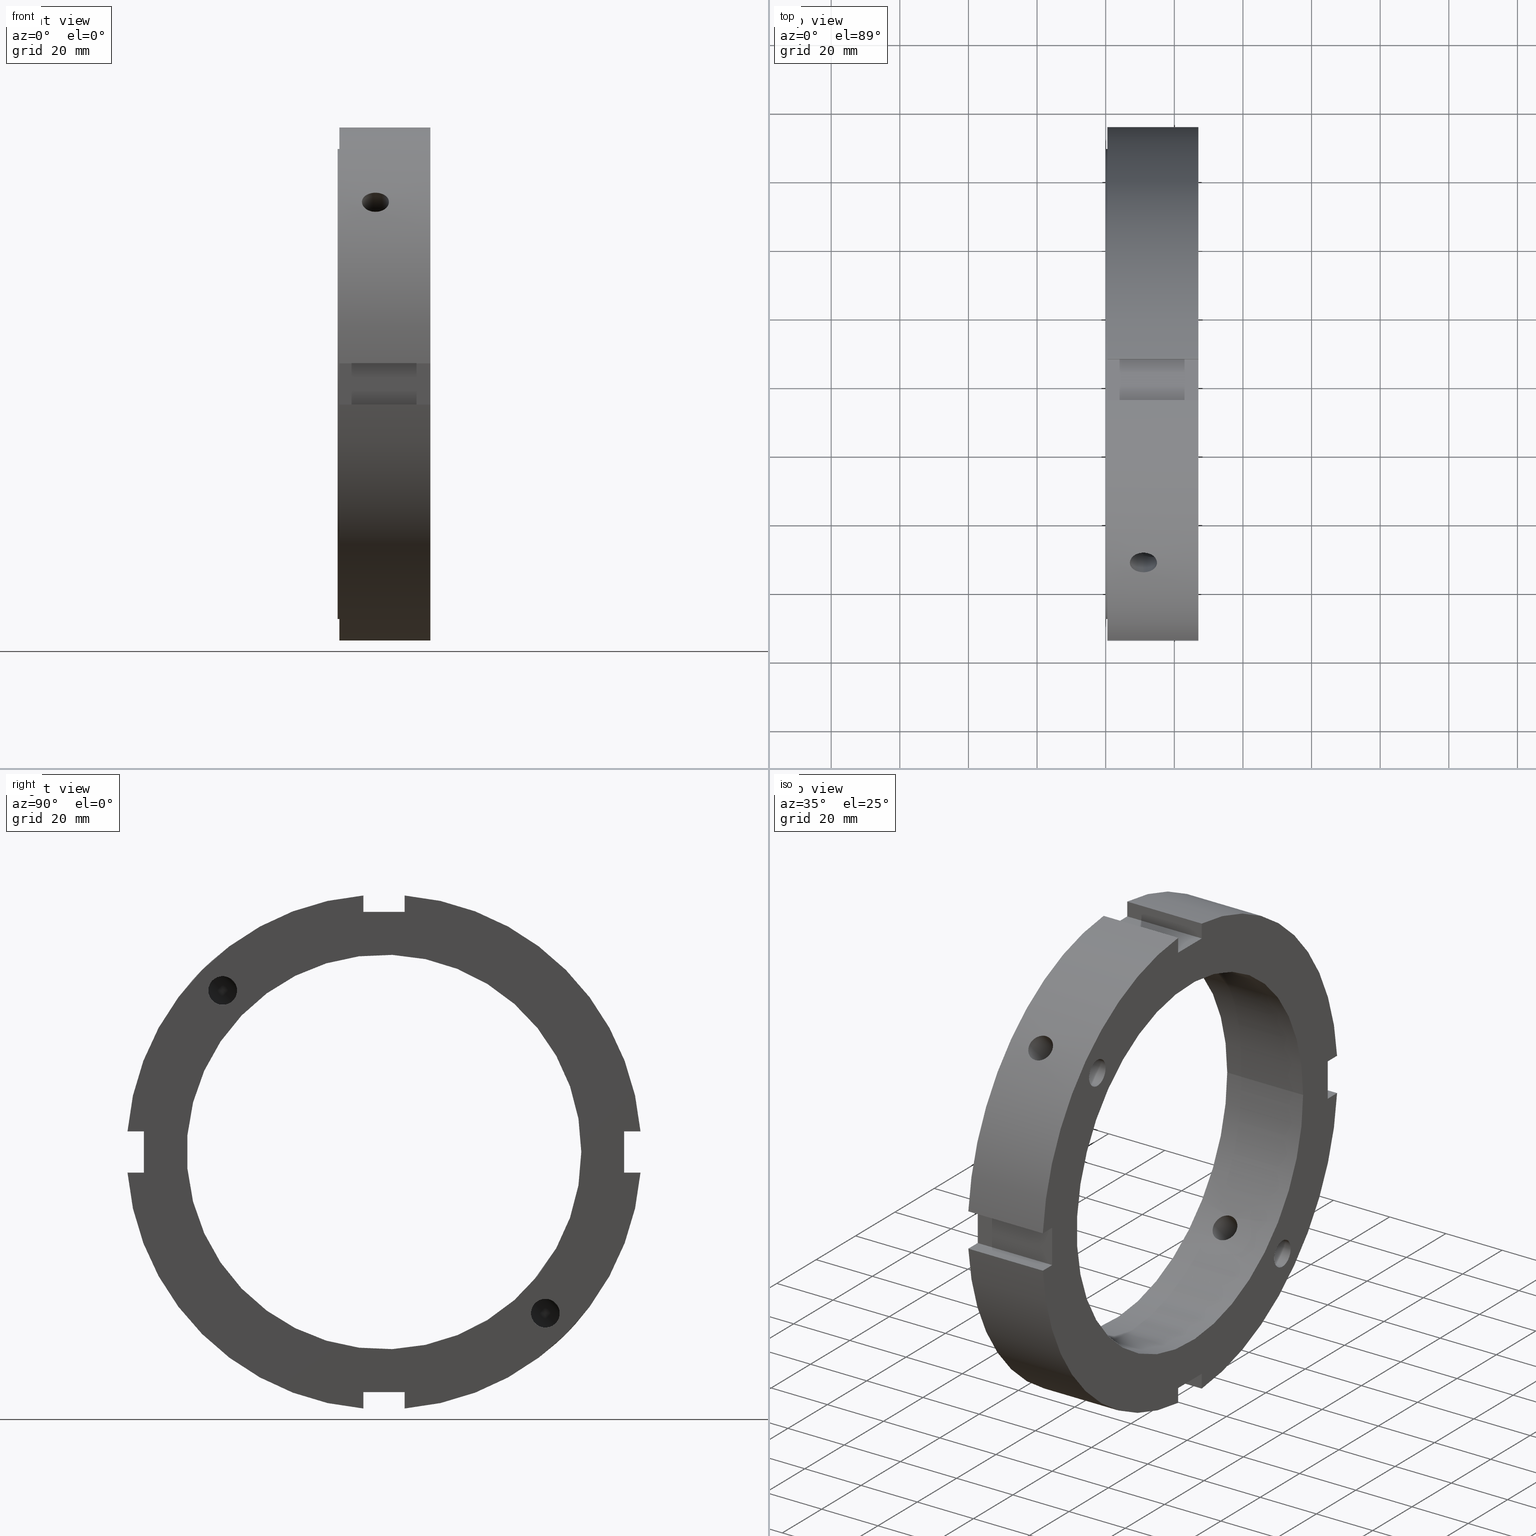
[diagram: canonical four-view strip — front | top / right | iso, engineering-drawing reading convention]
A machine part, canonical four-view strip (front | top / right | iso — engineering-drawing reading convention). The complete STEP part file that produces these views, byte-faithful:
ISO-10303-21;
HEADER;
/****************************************************************
 * Generated by software with PDElib inside                    *
 * PDElib Version v51a, created Wed 11/30/2011                  *
 * ITI Transcendata (http://www.transcendata.com/)              *
 ****************************************************************/
FILE_DESCRIPTION((''),'2;1');
FILE_NAME('C:\\Users\\sugidesign\\Documents\\Fukuda\\3Ddata\\ZMVtype\\FKD ZMV115.stp','2014-02-21T21:43:14',('sugidesign'),(''),'Autodesk Inventor LT ','Autodesk Inventor LT ','');
FILE_SCHEMA(('CONFIG_CONTROL_DESIGN'));
ENDSEC;
DATA;
#5=APPLICATION_CONTEXT('configuration controlled 3D designs of mechanical parts and assemblies');
#6=APPLICATION_PROTOCOL_DEFINITION('International Standard','ap203_configuration_controlled_3d_design_of_mechanical_parts_and_assemblies_mim_lf',2004,#5);
#7=PRODUCT_CONTEXT('',#5,'mechanical');
#8=PRODUCT('FKD ZMV115','FKD ZMV115',$,(#7));
#9=PRODUCT_RELATED_PRODUCT_CATEGORY('part',$,(#8));
#10=PRODUCT_DEFINITION_FORMATION('',$,#8);
#11=PRODUCT_DEFINITION_CONTEXT('part definition',#5,'design');
#12=PRODUCT_DEFINITION('',$,#10,#11);
#18=(NAMED_UNIT(*)PLANE_ANGLE_UNIT()SI_UNIT($,.RADIAN.));
#19=DIMENSIONAL_EXPONENTS(0.0,0.0,0.0,0.0,0.0,0.0,0.0);
#20=PLANE_ANGLE_MEASURE_WITH_UNIT(PLANE_ANGLE_MEASURE(0.0174532925),#18);
#24=(CONVERSION_BASED_UNIT('DEGREE',#20)NAMED_UNIT(#19)PLANE_ANGLE_UNIT());
#28=(NAMED_UNIT(*)SI_UNIT($,.STERADIAN.)SOLID_ANGLE_UNIT());
#32=(LENGTH_UNIT()NAMED_UNIT(*)SI_UNIT(.MILLI.,.METRE.));
#34=UNCERTAINTY_MEASURE_WITH_UNIT(LENGTH_MEASURE(0.01),#32,'DISTANCE_ACCURACY_VALUE','');
#36=(GEOMETRIC_REPRESENTATION_CONTEXT(3)GLOBAL_UNCERTAINTY_ASSIGNED_CONTEXT((#34))GLOBAL_UNIT_ASSIGNED_CONTEXT((#24,#28,#32))REPRESENTATION_CONTEXT('None','None'));
#37=AXIS2_PLACEMENT_3D('',#38,#39,#40);
#38=CARTESIAN_POINT('',(0.0,0.0,0.0));
#39=DIRECTION('',(0.0,0.0,1.0));
#40=DIRECTION('',(1.0,0.0,0.0));
#41=SHAPE_REPRESENTATION('',(#37),#36);
#42=PRODUCT_DEFINITION_SHAPE('','',#12);
#43=SHAPE_DEFINITION_REPRESENTATION(#42,#41);
#49=(NAMED_UNIT(*)PLANE_ANGLE_UNIT()SI_UNIT($,.RADIAN.));
#50=DIMENSIONAL_EXPONENTS(0.0,0.0,0.0,0.0,0.0,0.0,0.0);
#51=PLANE_ANGLE_MEASURE_WITH_UNIT(PLANE_ANGLE_MEASURE(0.0174532925),#49);
#55=(CONVERSION_BASED_UNIT('DEGREE',#51)NAMED_UNIT(#50)PLANE_ANGLE_UNIT());
#59=(NAMED_UNIT(*)SI_UNIT($,.STERADIAN.)SOLID_ANGLE_UNIT());
#63=(LENGTH_UNIT()NAMED_UNIT(*)SI_UNIT(.MILLI.,.METRE.));
#65=UNCERTAINTY_MEASURE_WITH_UNIT(LENGTH_MEASURE(0.000001),#63,'DISTANCE_ACCURACY_VALUE','');
#67=(GEOMETRIC_REPRESENTATION_CONTEXT(3)GLOBAL_UNCERTAINTY_ASSIGNED_CONTEXT((#65))GLOBAL_UNIT_ASSIGNED_CONTEXT((#55,#59,#63))REPRESENTATION_CONTEXT('','3D'));
#68=CARTESIAN_POINT('',(18.999999999999982,-47.022600948905414,47.022600948905414));
#69=DIRECTION('',(-1.0,0.0,0.0));
#70=DIRECTION('',(0.0,-1.0,0.0));
#71=AXIS2_PLACEMENT_3D('',#68,#69,#70);
#72=CYLINDRICAL_SURFACE('',#71,4.188);
#73=CARTESIAN_POINT('',(26.999999999999986,-51.210600948905416,47.022600948905414));
#74=VERTEX_POINT('',#73);
#75=CARTESIAN_POINT('',(26.999999999999986,-47.022600948905414,47.022600948905414));
#76=DIRECTION('',(-1.0,0.0,0.0));
#77=DIRECTION('',(0.0,-1.0,0.0));
#78=AXIS2_PLACEMENT_3D('',#75,#76,#77);
#79=CIRCLE('',#78,4.188);
#80=EDGE_CURVE('',#74,#74,#79,.T.);
#81=ORIENTED_EDGE('',*,*,#80,.F.);
#82=EDGE_LOOP('',(#81));
#83=FACE_OUTER_BOUND('',#82,.T.);
#84=CARTESIAN_POINT('',(10.999999999999982,-48.831588388613696,43.245444817239999));
#85=VERTEX_POINT('',#84);
#86=CARTESIAN_POINT('',(10.999999999999982,-43.245444817239864,48.831588388613426));
#87=VERTEX_POINT('',#86);
#88=CARTESIAN_POINT('',(10.999999999999982,-48.831588388613682,43.245444817239978));
#89=CARTESIAN_POINT('',(11.302186184549294,-48.831588388613682,43.245444817239978));
#90=CARTESIAN_POINT('',(11.563472613900208,-48.742360715057202,43.201543271303642));
#91=CARTESIAN_POINT('',(12.063727176337499,-48.489383262402001,43.097477272074528));
#92=CARTESIAN_POINT('',(12.301250833159202,-48.323033953197132,43.036710493126115));
#93=CARTESIAN_POINT('',(12.997553227607836,-47.751118898636861,42.879543913754105));
#94=CARTESIAN_POINT('',(13.431961554377917,-47.274896772794889,42.81420978616616));
#95=CARTESIAN_POINT('',(14.114248174209557,-46.360633024022022,42.864845028584888));
#96=CARTESIAN_POINT('',(14.415601356650214,-45.866626295339977,42.963683164786573));
#97=CARTESIAN_POINT('',(14.729475121457833,-45.146803435817596,43.269113882405001));
#98=CARTESIAN_POINT('',(14.811858442484642,-44.90997065582512,43.396457836524775));
#99=CARTESIAN_POINT('',(14.922144777571908,-44.462202154335372,43.697472584356554));
#100=CARTESIAN_POINT('',(14.949999999999983,-44.251285802127285,43.871189696465002));
#101=CARTESIAN_POINT('',(14.949999999999983,-43.871189696464981,44.251285802127313));
#102=CARTESIAN_POINT('',(14.92214477757191,-43.697472584356525,44.462202154335387));
#103=CARTESIAN_POINT('',(14.811858442484645,-43.396457836524746,44.909970655825148));
#104=CARTESIAN_POINT('',(14.729475121457828,-43.269113882404973,45.146803435817631));
#105=CARTESIAN_POINT('',(14.415601356650198,-42.963683164786566,45.866626295340033));
#106=CARTESIAN_POINT('',(14.11424817420956,-42.864845028584881,46.360633024022071));
#107=CARTESIAN_POINT('',(13.431961554377915,-42.814209786166167,47.27489677279496));
#108=CARTESIAN_POINT('',(12.997553227607836,-42.879543913754112,47.751118898636932));
#109=CARTESIAN_POINT('',(12.301250833159202,-43.036710493126122,48.323033953197204));
#110=CARTESIAN_POINT('',(12.063727176337489,-43.097477272074549,48.489383262402043));
#111=CARTESIAN_POINT('',(11.563472613900196,-43.201543271303663,48.742360715057245));
#112=CARTESIAN_POINT('',(11.302186184549294,-43.245444817240056,48.831588388613838));
#113=CARTESIAN_POINT('',(10.999999999999982,-43.245444817240056,48.831588388613838));
#114=B_SPLINE_CURVE_WITH_KNOTS('',3,(#88,#89,#90,#91,#92,#93,#94,#95,#96,#97,#98,#99,#100,#101,#102,#103,#104,#105,#106,#107,#108,#109,#110,#111,#112,#113),.UNSPECIFIED.,.F.,.U.,(4,2,2,2,2,2,2,2,2,2,2,2,4),(0.0,0.090655855364793,0.181311710729587,0.362623421459174,0.52388454174902,0.604515101893944,0.685145662038867,0.765776222183791,0.846406782328716,1.007667902618564,1.188979613348152,1.279635468712945,1.370291324077739),.UNSPECIFIED.);
#115=EDGE_CURVE('',#85,#87,#114,.T.);
#116=ORIENTED_EDGE('',*,*,#115,.F.);
#117=CARTESIAN_POINT('',(10.999999999999982,-50.799757080570835,45.213613509197124));
#118=VERTEX_POINT('',#117);
#119=CARTESIAN_POINT('',(10.999999999999982,-47.022600948905414,47.022600948905414));
#120=DIRECTION('',(-1.0,0.0,0.0));
#121=DIRECTION('',(0.0,-1.0,0.0));
#122=AXIS2_PLACEMENT_3D('',#119,#120,#121);
#123=CIRCLE('',#122,4.188);
#124=EDGE_CURVE('',#85,#118,#123,.T.);
#125=ORIENTED_EDGE('',*,*,#124,.T.);
#126=CARTESIAN_POINT('',(10.999999999999982,-45.21361350919706,50.799757080570799));
#127=VERTEX_POINT('',#126);
#128=CARTESIAN_POINT('',(10.999999999999982,-45.21361350919701,50.799757080570771));
#129=CARTESIAN_POINT('',(11.302186184549296,-45.21361350919701,50.799757080570771));
#130=CARTESIAN_POINT('',(11.563472613900199,-45.302841182753603,50.843658626507171));
#131=CARTESIAN_POINT('',(12.06372717633749,-45.555818635408805,50.947724625736285));
#132=CARTESIAN_POINT('',(12.301250833159191,-45.722167944613624,51.008491404684719));
#133=CARTESIAN_POINT('',(12.997553227607824,-46.294082999173902,51.165657984056722));
#134=CARTESIAN_POINT('',(13.431961554377914,-46.770305125015852,51.23099211164466));
#135=CARTESIAN_POINT('',(14.114248174209557,-47.684568873788756,51.180356869225953));
#136=CARTESIAN_POINT('',(14.415601356650198,-48.178575602470808,51.081518733024261));
#137=CARTESIAN_POINT('',(14.729475121457824,-48.898398461993189,50.776088015405854));
#138=CARTESIAN_POINT('',(14.81185844248464,-49.135231241985679,50.648744061286088));
#139=CARTESIAN_POINT('',(14.922144777571908,-49.582999743475433,50.347729313454309));
#140=CARTESIAN_POINT('',(14.949999999999983,-49.7939160956835,50.174012201345832));
#141=CARTESIAN_POINT('',(14.949999999999983,-50.174012201345811,49.793916095683528));
#142=CARTESIAN_POINT('',(14.92214477757191,-50.347729313454288,49.582999743475455));
#143=CARTESIAN_POINT('',(14.811858442484645,-50.648744061286067,49.1352312419857));
#144=CARTESIAN_POINT('',(14.729475121457828,-50.77608801540584,48.898398461993224));
#145=CARTESIAN_POINT('',(14.415601356650203,-51.081518733024247,48.178575602470843));
#146=CARTESIAN_POINT('',(14.114248174209559,-51.180356869225932,47.684568873788791));
#147=CARTESIAN_POINT('',(13.431961554377917,-51.230992111644653,46.770305125015923));
#148=CARTESIAN_POINT('',(12.997553227607828,-51.165657984056736,46.294082999173952));
#149=CARTESIAN_POINT('',(12.301250833159195,-51.008491404684733,45.72216794461368));
#150=CARTESIAN_POINT('',(12.063727176337489,-50.947724625736306,45.555818635408869));
#151=CARTESIAN_POINT('',(11.563472613900194,-50.843658626507199,45.302841182753674));
#152=CARTESIAN_POINT('',(11.302186184549292,-50.799757080570849,45.21361350919716));
#153=CARTESIAN_POINT('',(10.999999999999982,-50.799757080570849,45.21361350919716));
#154=B_SPLINE_CURVE_WITH_KNOTS('',3,(#128,#129,#130,#131,#132,#133,#134,#135,#136,#137,#138,#139,#140,#141,#142,#143,#144,#145,#146,#147,#148,#149,#150,#151,#152,#153),.UNSPECIFIED.,.F.,.U.,(4,2,2,2,2,2,2,2,2,2,2,2,4),(-1.37029132407774,-1.279635468712946,-1.188979613348152,-1.007667902618563,-0.846406782328715,-0.765776222183791,-0.685145662038867,-0.604515101893943,-0.52388454174902,-0.362623421459173,-0.181311710729587,-0.090655855364793,0.0),.UNSPECIFIED.);
#155=EDGE_CURVE('',#127,#118,#154,.T.);
#156=ORIENTED_EDGE('',*,*,#155,.F.);
#157=CARTESIAN_POINT('',(10.999999999999982,-47.022600948905414,47.022600948905414));
#158=DIRECTION('',(-1.0,0.0,0.0));
#159=DIRECTION('',(0.0,-1.0,0.0));
#160=AXIS2_PLACEMENT_3D('',#157,#158,#159);
#161=CIRCLE('',#160,4.188);
#162=EDGE_CURVE('',#127,#87,#161,.T.);
#163=ORIENTED_EDGE('',*,*,#162,.T.);
#164=EDGE_LOOP('',(#116,#125,#156,#163));
#165=FACE_BOUND('',#164,.T.);
#166=ADVANCED_FACE('',(#83,#165),#72,.F.);
#167=CARTESIAN_POINT('',(9.741797863756272,-47.022600948905414,47.022600948905414));
#168=DIRECTION('',(1.0,0.0,0.0));
#169=DIRECTION('',(0.0,-1.0,0.0));
#170=AXIS2_PLACEMENT_3D('',#167,#168,#169);
#171=CONICAL_SURFACE('',#170,2.094,59.000000000000007);
#172=CARTESIAN_POINT('',(10.999999999999979,-50.799757080570828,45.213613509197131));
#173=CARTESIAN_POINT('',(10.906150737993395,-50.467402648320046,44.881259076946371));
#174=CARTESIAN_POINT('',(10.855404421538758,-50.134767372092234,44.552367866738017));
#175=CARTESIAN_POINT('',(10.855404421538758,-49.813800701582515,44.231401196228298));
#176=CARTESIAN_POINT('',(10.855404421538758,-49.492834031072796,43.910434525718578));
#177=CARTESIAN_POINT('',(10.906150737993393,-49.163942820864449,43.577799249490766));
#178=CARTESIAN_POINT('',(10.999999999999977,-48.831588388613689,43.245444817239999));
#179=B_SPLINE_CURVE_WITH_KNOTS('',3,(#172,#173,#174,#175,#176,#177,#178),.UNSPECIFIED.,.F.,.U.,(4,3,4),(-0.136174625551375,0.0,0.136174625551374),.UNSPECIFIED.);
#180=EDGE_CURVE('',#118,#85,#179,.T.);
#181=ORIENTED_EDGE('',*,*,#180,.F.);
#182=ORIENTED_EDGE('',*,*,#124,.F.);
#183=EDGE_LOOP('',(#181,#182));
#184=FACE_OUTER_BOUND('',#183,.T.);
#185=ADVANCED_FACE('',(#184),#171,.F.);
#186=CARTESIAN_POINT('',(9.741797863756272,-47.022600948905414,47.022600948905414));
#187=DIRECTION('',(1.0,0.0,0.0));
#188=DIRECTION('',(0.0,-1.0,0.0));
#189=AXIS2_PLACEMENT_3D('',#186,#187,#188);
#190=CONICAL_SURFACE('',#189,2.094,59.000000000000007);
#191=CARTESIAN_POINT('',(11.00000000000006,-43.245444817239786,48.831588388613547));
#192=CARTESIAN_POINT('',(10.906150737993441,-43.577799249490624,49.163942820864392));
#193=CARTESIAN_POINT('',(10.855404421538772,-43.910434525718507,49.492834031072761));
#194=CARTESIAN_POINT('',(10.855404421538775,-44.547617517501983,50.130017022856244));
#195=CARTESIAN_POINT('',(10.905603352153033,-44.879320584236666,50.465464155610434));
#196=CARTESIAN_POINT('',(10.999999999999995,-45.213613509197046,50.799757080570814));
#197=B_SPLINE_CURVE_WITH_KNOTS('',3,(#191,#192,#193,#194,#195,#196),.UNSPECIFIED.,.F.,.U.,(4,2,4),(2.378610771223419,2.514785396774822,2.648944619831517),.UNSPECIFIED.);
#198=EDGE_CURVE('',#87,#127,#197,.T.);
#199=ORIENTED_EDGE('',*,*,#198,.F.);
#200=ORIENTED_EDGE('',*,*,#162,.F.);
#201=EDGE_LOOP('',(#199,#200));
#202=FACE_OUTER_BOUND('',#201,.T.);
#203=ADVANCED_FACE('',(#202),#190,.F.);
#204=CARTESIAN_POINT('',(10.999999999999982,-150.73320801999802,150.73320801999807));
#205=DIRECTION('',(0.0,-0.707106781186547,0.707106781186548));
#206=DIRECTION('',(1.0,0.0,0.0));
#207=AXIS2_PLACEMENT_3D('',#204,#205,#206);
#208=CYLINDRICAL_SURFACE('',#207,3.95);
#209=CARTESIAN_POINT('',(10.999999999999982,-55.752478410006205,50.166334838632494));
#210=VERTEX_POINT('',#209);
#211=CARTESIAN_POINT('',(10.999999999999982,-55.752478410006191,50.166334838632508));
#212=CARTESIAN_POINT('',(10.503930676845254,-55.752478410006191,50.166334838632508));
#213=CARTESIAN_POINT('',(9.974858666449755,-55.686206447258122,50.240293973320114));
#214=CARTESIAN_POINT('',(9.001687453386499,-55.415029825469738,50.539244121828432));
#215=CARTESIAN_POINT('',(8.557580470002794,-55.20992871937743,50.764031543704426));
#216=CARTESIAN_POINT('',(7.856276049832351,-54.732512110911635,51.27840915759586));
#217=CARTESIAN_POINT('',(7.552298888038028,-54.428318220698102,51.602277445046845));
#218=CARTESIAN_POINT('',(7.149158323944112,-53.75405529948771,52.3042866379744));
#219=CARTESIAN_POINT('',(7.049999999999983,-53.383782480091796,52.682234697890323));
#220=CARTESIAN_POINT('',(7.049999999999983,-52.68223469789028,53.383782480091845));
#221=CARTESIAN_POINT('',(7.14915832394412,-52.304286637974357,53.754055299487732));
#222=CARTESIAN_POINT('',(7.55229888803803,-51.602277445046809,54.428318220698131));
#223=CARTESIAN_POINT('',(7.856276049832351,-51.278409157595831,54.732512110911671));
#224=CARTESIAN_POINT('',(8.557580470002792,-50.764031543704377,55.209928719377473));
#225=CARTESIAN_POINT('',(9.001687453386509,-50.539244121828389,55.415029825469787));
#226=CARTESIAN_POINT('',(9.974858666449762,-50.240293973320078,55.686206447258172));
#227=CARTESIAN_POINT('',(10.503930676845254,-50.166334838632466,55.75247841000624));
#228=CARTESIAN_POINT('',(11.496069323154714,-50.166334838632466,55.75247841000624));
#229=CARTESIAN_POINT('',(12.025141333550211,-50.240293973320078,55.686206447258158));
#230=CARTESIAN_POINT('',(12.998312546613464,-50.539244121828389,55.415029825469773));
#231=CARTESIAN_POINT('',(13.442419529997176,-50.764031543704377,55.209928719377473));
#232=CARTESIAN_POINT('',(14.143723950167617,-51.278409157595831,54.732512110911671));
#233=CARTESIAN_POINT('',(14.447701111961937,-51.602277445046809,54.428318220698131));
#234=CARTESIAN_POINT('',(14.850841676055849,-52.304286637974357,53.754055299487732));
#235=CARTESIAN_POINT('',(14.949999999999983,-52.68223469789028,53.383782480091845));
#236=CARTESIAN_POINT('',(14.949999999999983,-53.383782480091796,52.682234697890323));
#237=CARTESIAN_POINT('',(14.85084167605585,-53.754055299487689,52.3042866379744));
#238=CARTESIAN_POINT('',(14.447701111961941,-54.428318220698095,51.602277445046852));
#239=CARTESIAN_POINT('',(14.143723950167617,-54.732512110911635,51.278409157595874));
#240=CARTESIAN_POINT('',(13.442419529997171,-55.20992871937743,50.764031543704426));
#241=CARTESIAN_POINT('',(12.998312546613466,-55.415029825469738,50.539244121828432));
#242=CARTESIAN_POINT('',(12.025141333550216,-55.686206447258122,50.240293973320114));
#243=CARTESIAN_POINT('',(11.496069323154712,-55.752478410006191,50.166334838632508));
#244=CARTESIAN_POINT('',(10.999999999999982,-55.752478410006191,50.166334838632508));
#245=B_SPLINE_CURVE_WITH_KNOTS('',3,(#211,#212,#213,#214,#215,#216,#217,#218,#219,#220,#221,#222,#223,#224,#225,#226,#227,#228,#229,#230,#231,#232,#233,#234,#235,#236,#237,#238,#239,#240,#241,#242,#243,#244),.UNSPECIFIED.,.T.,.U.,(4,2,2,2,2,2,2,2,2,2,2,2,2,2,2,2,4),(0.0,0.148820796946419,0.297641593892837,0.446462352129161,0.595283110365485,0.744103868601809,0.892924626838133,1.041745423784552,1.19056622073097,1.339387017677389,1.488207814623808,1.637028572860132,1.785849331096456,1.93467008933278,2.083490847569104,2.232311644515522,2.381132441461941),.UNSPECIFIED.);
#246=EDGE_CURVE('',#210,#210,#245,.T.);
#247=ORIENTED_EDGE('',*,*,#246,.F.);
#248=EDGE_LOOP('',(#247));
#249=FACE_OUTER_BOUND('',#248,.T.);
#250=ORIENTED_EDGE('',*,*,#180,.T.);
#251=ORIENTED_EDGE('',*,*,#115,.T.);
#252=ORIENTED_EDGE('',*,*,#198,.T.);
#253=ORIENTED_EDGE('',*,*,#155,.T.);
#254=EDGE_LOOP('',(#250,#251,#252,#253));
#255=FACE_BOUND('',#254,.T.);
#256=CARTESIAN_POINT('',(10.999999999999982,-43.355662309468741,37.76951873809503));
#257=VERTEX_POINT('',#256);
#258=CARTESIAN_POINT('',(10.999999999999982,-43.355662309468734,37.769518738095037));
#259=CARTESIAN_POINT('',(11.496138641137819,-43.355662309468734,37.769518738095037));
#260=CARTESIAN_POINT('',(12.025240402017248,-43.290547493703173,37.844673293202938));
#261=CARTESIAN_POINT('',(12.998392460572504,-43.02359892889627,38.14787981128265));
#262=CARTESIAN_POINT('',(13.442456039562433,-42.821509267094925,38.375663723744267));
#263=CARTESIAN_POINT('',(14.143687267353691,-42.349778145131012,38.895623314482286));
#264=CARTESIAN_POINT('',(14.447653989924003,-42.048611580764579,39.222457652884806));
#265=CARTESIAN_POINT('',(14.850814676252249,-41.378587582895449,39.928679039565829));
#266=CARTESIAN_POINT('',(14.949999999999983,-41.009462651169805,40.307817185283156));
#267=CARTESIAN_POINT('',(14.949999999999983,-40.307817185283106,41.009462651169848));
#268=CARTESIAN_POINT('',(14.850814676252249,-39.928679039565793,41.37858758289547));
#269=CARTESIAN_POINT('',(14.447653989924003,-39.222457652884763,42.048611580764621));
#270=CARTESIAN_POINT('',(14.143687267353693,-38.895623314482222,42.349778145131047));
#271=CARTESIAN_POINT('',(13.44245603956243,-38.375663723744211,42.821509267094967));
#272=CARTESIAN_POINT('',(12.9983924605725,-38.147879811282607,43.023598928896305));
#273=CARTESIAN_POINT('',(12.025240402017246,-37.844673293202902,43.290547493703208));
#274=CARTESIAN_POINT('',(11.49613864113782,-37.769518738094987,43.355662309468777));
#275=CARTESIAN_POINT('',(10.503861358862146,-37.769518738094987,43.355662309468777));
#276=CARTESIAN_POINT('',(9.974759597982727,-37.844673293202902,43.290547493703208));
#277=CARTESIAN_POINT('',(9.001607539427472,-38.147879811282607,43.02359892889632));
#278=CARTESIAN_POINT('',(8.557543960437538,-38.375663723744211,42.821509267094967));
#279=CARTESIAN_POINT('',(7.856312732646278,-38.895623314482229,42.349778145131047));
#280=CARTESIAN_POINT('',(7.552346010075969,-39.222457652884756,42.048611580764621));
#281=CARTESIAN_POINT('',(7.149185323747722,-39.928679039565786,41.378587582895477));
#282=CARTESIAN_POINT('',(7.049999999999983,-40.307817185283106,41.009462651169848));
#283=CARTESIAN_POINT('',(7.049999999999983,-41.009462651169805,40.307817185283156));
#284=CARTESIAN_POINT('',(7.149185323747718,-41.378587582895435,39.928679039565836));
#285=CARTESIAN_POINT('',(7.552346010075959,-42.048611580764586,39.222457652884806));
#286=CARTESIAN_POINT('',(7.856312732646275,-42.349778145131012,38.895623314482286));
#287=CARTESIAN_POINT('',(8.557543960437533,-42.821509267094925,38.375663723744267));
#288=CARTESIAN_POINT('',(9.001607539427459,-43.02359892889627,38.14787981128265));
#289=CARTESIAN_POINT('',(9.974759597982715,-43.290547493703173,37.844673293202938));
#290=CARTESIAN_POINT('',(10.503861358862148,-43.355662309468734,37.769518738095037));
#291=CARTESIAN_POINT('',(10.999999999999982,-43.355662309468734,37.769518738095037));
#292=B_SPLINE_CURVE_WITH_KNOTS('',3,(#258,#259,#260,#261,#262,#263,#264,#265,#266,#267,#268,#269,#270,#271,#272,#273,#274,#275,#276,#277,#278,#279,#280,#281,#282,#283,#284,#285,#286,#287,#288,#289,#290,#291),.UNSPECIFIED.,.T.,.U.,(4,2,2,2,2,2,2,2,2,2,2,2,2,2,2,2,4),(0.0,0.148841592341351,0.297683184682702,0.446524664757886,0.59536614483307,0.744207624908254,0.893049104983438,1.041890697324789,1.19073228966614,1.339573882007492,1.488415474348843,1.637256954424027,1.786098434499211,1.934939914574395,2.083781394649579,2.23262298699093,2.381464579332281),.UNSPECIFIED.);
#293=EDGE_CURVE('',#257,#257,#292,.T.);
#294=ORIENTED_EDGE('',*,*,#293,.F.);
#295=EDGE_LOOP('',(#294));
#296=FACE_BOUND('',#295,.T.);
#297=ADVANCED_FACE('',(#249,#255,#296),#208,.F.);
#298=CARTESIAN_POINT('',(9.741797863756272,47.022600948905406,-47.022600948905421));
#299=DIRECTION('',(1.0,0.0,0.0));
#300=DIRECTION('',(0.0,0.0,-1.0));
#301=AXIS2_PLACEMENT_3D('',#298,#299,#300);
#302=CONICAL_SURFACE('',#301,2.094,59.000000000000007);
#303=CARTESIAN_POINT('',(10.999999999999982,43.245444817239985,-48.831588388613703));
#304=VERTEX_POINT('',#303);
#305=CARTESIAN_POINT('',(10.999999999999982,45.213613509197117,-50.799757080570842));
#306=VERTEX_POINT('',#305);
#307=CARTESIAN_POINT('',(10.999999999999982,43.245444817239985,-48.83158838861371));
#308=CARTESIAN_POINT('',(10.906150737969041,43.577799249577012,-49.163942820950737));
#309=CARTESIAN_POINT('',(10.855404421538758,43.910434525031903,-49.492834030386142));
#310=CARTESIAN_POINT('',(10.855404421538758,44.23140119622829,-49.813800701582522));
#311=CARTESIAN_POINT('',(10.855404421538758,44.552367866738017,-50.134767372092249));
#312=CARTESIAN_POINT('',(10.906150737993398,44.881259076946336,-50.467402648320061));
#313=CARTESIAN_POINT('',(10.999999999999988,45.213613509197117,-50.799757080570842));
#314=B_SPLINE_CURVE_WITH_KNOTS('',3,(#307,#308,#309,#310,#311,#312,#313),.UNSPECIFIED.,.F.,.U.,(4,3,4),(-0.136174625842702,0.0,0.136174625551378),.UNSPECIFIED.);
#315=EDGE_CURVE('',#304,#306,#314,.T.);
#316=ORIENTED_EDGE('',*,*,#315,.F.);
#317=CARTESIAN_POINT('',(10.999999999999982,47.022600948905406,-47.022600948905421));
#318=DIRECTION('',(1.0,0.0,0.0));
#319=DIRECTION('',(0.0,0.0,-1.0));
#320=AXIS2_PLACEMENT_3D('',#317,#318,#319);
#321=CIRCLE('',#320,4.188);
#322=EDGE_CURVE('',#304,#306,#321,.T.);
#323=ORIENTED_EDGE('',*,*,#322,.T.);
#324=EDGE_LOOP('',(#316,#323));
#325=FACE_OUTER_BOUND('',#324,.T.);
#326=ADVANCED_FACE('',(#325),#302,.F.);
#327=CARTESIAN_POINT('',(9.741797863756272,47.022600948905406,-47.022600948905421));
#328=DIRECTION('',(1.0,0.0,0.0));
#329=DIRECTION('',(0.0,0.0,-1.0));
#330=AXIS2_PLACEMENT_3D('',#327,#328,#329);
#331=CONICAL_SURFACE('',#330,2.094,59.000000000000007);
#332=CARTESIAN_POINT('',(10.999999999999982,50.799757080570785,-45.213613509197074));
#333=VERTEX_POINT('',#332);
#334=CARTESIAN_POINT('',(10.999999999999982,48.831588388613419,-43.245444817239871));
#335=VERTEX_POINT('',#334);
#336=CARTESIAN_POINT('',(10.999999999999982,50.799757080570785,-45.213613509197074));
#337=CARTESIAN_POINT('',(10.906150737993411,50.467402648320039,-44.881259076946321));
#338=CARTESIAN_POINT('',(10.855404421538775,50.134767372092242,-44.55236786673801));
#339=CARTESIAN_POINT('',(10.855404421538772,49.492834031072746,-43.910434525718514));
#340=CARTESIAN_POINT('',(10.906150737993434,49.163942820864371,-43.577799249490631));
#341=CARTESIAN_POINT('',(11.000000000000053,48.831588388613525,-43.245444817239793));
#342=B_SPLINE_CURVE_WITH_KNOTS('',3,(#336,#337,#338,#339,#340,#341),.UNSPECIFIED.,.F.,.U.,(4,2,4),(2.378610771223452,2.51478539677482,2.650960022326223),.UNSPECIFIED.);
#343=EDGE_CURVE('',#333,#335,#342,.T.);
#344=ORIENTED_EDGE('',*,*,#343,.F.);
#345=CARTESIAN_POINT('',(10.999999999999982,47.022600948905406,-47.022600948905421));
#346=DIRECTION('',(1.0,0.0,0.0));
#347=DIRECTION('',(0.0,0.0,-1.0));
#348=AXIS2_PLACEMENT_3D('',#345,#346,#347);
#349=CIRCLE('',#348,4.188);
#350=EDGE_CURVE('',#333,#335,#349,.T.);
#351=ORIENTED_EDGE('',*,*,#350,.T.);
#352=EDGE_LOOP('',(#344,#351));
#353=FACE_OUTER_BOUND('',#352,.T.);
#354=ADVANCED_FACE('',(#353),#331,.F.);
#355=CARTESIAN_POINT('',(18.999999999999982,47.022600948905406,-47.022600948905421));
#356=DIRECTION('',(1.0,0.0,0.0));
#357=DIRECTION('',(0.0,0.0,-1.0));
#358=AXIS2_PLACEMENT_3D('',#355,#356,#357);
#359=CYLINDRICAL_SURFACE('',#358,4.188);
#360=CARTESIAN_POINT('',(10.999999999999982,45.21361350919711,-50.799757080570835));
#361=CARTESIAN_POINT('',(11.302186184549294,45.21361350919711,-50.799757080570835));
#362=CARTESIAN_POINT('',(11.563472613900201,45.302841182753667,-50.843658626507207));
#363=CARTESIAN_POINT('',(12.063727176337494,45.555818635408862,-50.947724625736313));
#364=CARTESIAN_POINT('',(12.301250833159196,45.722167944613673,-51.008491404684747));
#365=CARTESIAN_POINT('',(12.997553227607828,46.294082999173945,-51.165657984056743));
#366=CARTESIAN_POINT('',(13.431961554377917,46.770305125015916,-51.23099211164466));
#367=CARTESIAN_POINT('',(14.114248174209559,47.684568873788784,-51.180356869225946));
#368=CARTESIAN_POINT('',(14.415601356650203,48.178575602470836,-51.081518733024254));
#369=CARTESIAN_POINT('',(14.729475121457828,48.898398461993217,-50.776088015405847));
#370=CARTESIAN_POINT('',(14.811858442484642,49.135231241985686,-50.648744061286081));
#371=CARTESIAN_POINT('',(14.922144777571908,49.582999743475433,-50.347729313454295));
#372=CARTESIAN_POINT('',(14.949999999999983,49.793916095683521,-50.174012201345818));
#373=CARTESIAN_POINT('',(14.949999999999983,50.174012201345818,-49.793916095683514));
#374=CARTESIAN_POINT('',(14.922144777571908,50.347729313454302,-49.58299974347544));
#375=CARTESIAN_POINT('',(14.81185844248464,50.648744061286081,-49.135231241985686));
#376=CARTESIAN_POINT('',(14.729475121457824,50.776088015405847,-48.898398461993196));
#377=CARTESIAN_POINT('',(14.415601356650198,51.081518733024254,-48.178575602470815));
#378=CARTESIAN_POINT('',(14.114248174209559,51.180356869225946,-47.684568873788763));
#379=CARTESIAN_POINT('',(13.431961554377917,51.230992111644653,-46.770305125015874));
#380=CARTESIAN_POINT('',(12.997553227607828,51.165657984056722,-46.294082999173902));
#381=CARTESIAN_POINT('',(12.301250833159191,51.008491404684705,-45.722167944613624));
#382=CARTESIAN_POINT('',(12.063727176337489,50.947724625736271,-45.555818635408812));
#383=CARTESIAN_POINT('',(11.563472613900199,50.843658626507164,-45.30284118275361));
#384=CARTESIAN_POINT('',(11.302186184549296,50.799757080570785,-45.21361350919706));
#385=CARTESIAN_POINT('',(10.999999999999982,50.799757080570785,-45.21361350919706));
#386=B_SPLINE_CURVE_WITH_KNOTS('',3,(#360,#361,#362,#363,#364,#365,#366,#367,#368,#369,#370,#371,#372,#373,#374,#375,#376,#377,#378,#379,#380,#381,#382,#383,#384,#385),.UNSPECIFIED.,.F.,.U.,(4,2,2,2,2,2,2,2,2,2,2,2,4),(0.0,0.090655855364793,0.181311710729587,0.362623421459174,0.52388454174902,0.604515101893943,0.685145662038867,0.765776222183791,0.846406782328715,1.007667902618563,1.188979613348151,1.279635468712945,1.37029132407774),.UNSPECIFIED.);
#387=EDGE_CURVE('',#306,#333,#386,.T.);
#388=ORIENTED_EDGE('',*,*,#387,.F.);
#389=ORIENTED_EDGE('',*,*,#322,.F.);
#390=CARTESIAN_POINT('',(10.999999999999982,48.831588388613774,-43.245444817240049));
#391=CARTESIAN_POINT('',(11.302186184549294,48.831588388613774,-43.245444817240049));
#392=CARTESIAN_POINT('',(11.563472613900199,48.742360715057238,-43.20154327130367));
#393=CARTESIAN_POINT('',(12.06372717633748,48.489383262402029,-43.097477272074556));
#394=CARTESIAN_POINT('',(12.301250833159184,48.323033953197196,-43.036710493126122));
#395=CARTESIAN_POINT('',(12.997553227607813,47.751118898636911,-42.879543913754105));
#396=CARTESIAN_POINT('',(13.431961554377917,47.27489677279496,-42.814209786166174));
#397=CARTESIAN_POINT('',(14.11424817420956,46.360633024022071,-42.864845028584888));
#398=CARTESIAN_POINT('',(14.415601356650196,45.866626295340026,-42.963683164786573));
#399=CARTESIAN_POINT('',(14.729475121457828,45.146803435817624,-43.26911388240498));
#400=CARTESIAN_POINT('',(14.811858442484645,44.909970655825134,-43.396457836524753));
#401=CARTESIAN_POINT('',(14.92214477757191,44.46220215433538,-43.697472584356532));
#402=CARTESIAN_POINT('',(14.949999999999983,44.251285802127299,-43.871189696464995));
#403=CARTESIAN_POINT('',(14.949999999999983,43.871189696464995,-44.251285802127292));
#404=CARTESIAN_POINT('',(14.922144777571912,43.697472584356532,-44.46220215433538));
#405=CARTESIAN_POINT('',(14.811858442484645,43.396457836524753,-44.909970655825134));
#406=CARTESIAN_POINT('',(14.729475121457833,43.269113882404994,-45.146803435817603));
#407=CARTESIAN_POINT('',(14.415601356650214,42.963683164786566,-45.866626295339984));
#408=CARTESIAN_POINT('',(14.114248174209557,42.864845028584881,-46.360633024022029));
#409=CARTESIAN_POINT('',(13.431961554377917,42.814209786166153,-47.274896772794897));
#410=CARTESIAN_POINT('',(12.997553227607831,42.879543913754091,-47.751118898636868));
#411=CARTESIAN_POINT('',(12.301250833159196,43.036710493126108,-48.32303395319714));
#412=CARTESIAN_POINT('',(12.063727176337499,43.097477272074521,-48.489383262402008));
#413=CARTESIAN_POINT('',(11.563472613900212,43.201543271303635,-48.742360715057202));
#414=CARTESIAN_POINT('',(11.302186184549296,43.245444817239999,-48.831588388613724));
#415=CARTESIAN_POINT('',(10.999999999999982,43.245444817239999,-48.831588388613724));
#416=B_SPLINE_CURVE_WITH_KNOTS('',3,(#390,#391,#392,#393,#394,#395,#396,#397,#398,#399,#400,#401,#402,#403,#404,#405,#406,#407,#408,#409,#410,#411,#412,#413,#414,#415),.UNSPECIFIED.,.F.,.U.,(4,2,2,2,2,2,2,2,2,2,2,2,4),(-1.370291324077739,-1.279635468712946,-1.188979613348152,-1.007667902618565,-0.846406782328716,-0.765776222183792,-0.685145662038867,-0.604515101893944,-0.523884541749021,-0.362623421459174,-0.181311710729587,-0.090655855364794,0.0),.UNSPECIFIED.);
#417=EDGE_CURVE('',#335,#304,#416,.T.);
#418=ORIENTED_EDGE('',*,*,#417,.F.);
#419=ORIENTED_EDGE('',*,*,#350,.F.);
#420=EDGE_LOOP('',(#388,#389,#418,#419));
#421=FACE_OUTER_BOUND('',#420,.T.);
#422=CARTESIAN_POINT('',(26.999999999999986,47.022600948905406,-51.210600948905423));
#423=VERTEX_POINT('',#422);
#424=CARTESIAN_POINT('',(26.999999999999986,47.022600948905406,-47.022600948905421));
#425=DIRECTION('',(-1.0,0.0,0.0));
#426=DIRECTION('',(0.0,0.0,-1.0));
#427=AXIS2_PLACEMENT_3D('',#424,#425,#426);
#428=CIRCLE('',#427,4.188);
#429=EDGE_CURVE('',#423,#423,#428,.T.);
#430=ORIENTED_EDGE('',*,*,#429,.F.);
#431=EDGE_LOOP('',(#430));
#432=FACE_BOUND('',#431,.T.);
#433=ADVANCED_FACE('',(#421,#432),#359,.F.);
#434=CARTESIAN_POINT('',(10.999999999999982,150.73320801999802,-150.73320801999805));
#435=DIRECTION('',(0.0,-0.707106781186547,0.707106781186548));
#436=DIRECTION('',(1.0,0.0,0.0));
#437=AXIS2_PLACEMENT_3D('',#434,#435,#436);
#438=CYLINDRICAL_SURFACE('',#437,3.95);
#439=CARTESIAN_POINT('',(10.999999999999982,50.166334838632487,-55.752478410006212));
#440=VERTEX_POINT('',#439);
#441=CARTESIAN_POINT('',(10.999999999999982,50.16633483863248,-55.752478410006212));
#442=CARTESIAN_POINT('',(11.496069323154712,50.16633483863248,-55.752478410006212));
#443=CARTESIAN_POINT('',(12.025141333550206,50.240293973320092,-55.686206447258151));
#444=CARTESIAN_POINT('',(12.998312546613457,50.539244121828411,-55.415029825469766));
#445=CARTESIAN_POINT('',(13.442419529997171,50.764031543704391,-55.209928719377459));
#446=CARTESIAN_POINT('',(14.143723950167612,51.278409157595846,-54.732512110911657));
#447=CARTESIAN_POINT('',(14.447701111961937,51.602277445046823,-54.428318220698117));
#448=CARTESIAN_POINT('',(14.850841676055849,52.304286637974371,-53.754055299487717));
#449=CARTESIAN_POINT('',(14.949999999999983,52.682234697890294,-53.383782480091824));
#450=CARTESIAN_POINT('',(14.949999999999983,53.383782480091817,-52.682234697890308));
#451=CARTESIAN_POINT('',(14.850841676055852,53.754055299487725,-52.304286637974386));
#452=CARTESIAN_POINT('',(14.447701111961937,54.428318220698124,-51.602277445046823));
#453=CARTESIAN_POINT('',(14.143723950167615,54.732512110911657,-51.278409157595846));
#454=CARTESIAN_POINT('',(13.442419529997171,55.209928719377444,-50.764031543704405));
#455=CARTESIAN_POINT('',(12.998312546613466,55.415029825469766,-50.539244121828418));
#456=CARTESIAN_POINT('',(12.025141333550211,55.686206447258151,-50.240293973320107));
#457=CARTESIAN_POINT('',(11.496069323154712,55.752478410006212,-50.166334838632508));
#458=CARTESIAN_POINT('',(10.503930676845254,55.752478410006212,-50.166334838632494));
#459=CARTESIAN_POINT('',(9.974858666449755,55.686206447258144,-50.240293973320092));
#460=CARTESIAN_POINT('',(9.001687453386499,55.415029825469759,-50.539244121828411));
#461=CARTESIAN_POINT('',(8.557580470002794,55.209928719377444,-50.764031543704405));
#462=CARTESIAN_POINT('',(7.856276049832351,54.732512110911657,-51.278409157595846));
#463=CARTESIAN_POINT('',(7.552298888038028,54.428318220698131,-51.602277445046838));
#464=CARTESIAN_POINT('',(7.149158323944116,53.754055299487725,-52.304286637974393));
#465=CARTESIAN_POINT('',(7.049999999999983,53.383782480091817,-52.682234697890308));
#466=CARTESIAN_POINT('',(7.049999999999983,52.682234697890294,-53.383782480091824));
#467=CARTESIAN_POINT('',(7.149158323944119,52.304286637974371,-53.754055299487717));
#468=CARTESIAN_POINT('',(7.55229888803803,51.602277445046823,-54.428318220698117));
#469=CARTESIAN_POINT('',(7.856276049832351,51.278409157595846,-54.732512110911657));
#470=CARTESIAN_POINT('',(8.557580470002792,50.764031543704391,-55.209928719377459));
#471=CARTESIAN_POINT('',(9.001687453386509,50.539244121828411,-55.415029825469766));
#472=CARTESIAN_POINT('',(9.974858666449762,50.240293973320092,-55.686206447258151));
#473=CARTESIAN_POINT('',(10.503930676845258,50.16633483863248,-55.752478410006212));
#474=CARTESIAN_POINT('',(10.999999999999986,50.16633483863248,-55.752478410006212));
#475=B_SPLINE_CURVE_WITH_KNOTS('',3,(#441,#442,#443,#444,#445,#446,#447,#448,#449,#450,#451,#452,#453,#454,#455,#456,#457,#458,#459,#460,#461,#462,#463,#464,#465,#466,#467,#468,#469,#470,#471,#472,#473,#474),.UNSPECIFIED.,.T.,.U.,(4,2,2,2,2,2,2,2,2,2,2,2,2,2,2,2,4),(0.0,0.148820796946419,0.297641593892837,0.446462352129161,0.595283110365485,0.744103868601809,0.892924626838133,1.041745423784552,1.19056622073097,1.339387017677389,1.488207814623808,1.637028572860132,1.785849331096456,1.93467008933278,2.083490847569104,2.232311644515523,2.381132441461942),.UNSPECIFIED.);
#476=EDGE_CURVE('',#440,#440,#475,.T.);
#477=ORIENTED_EDGE('',*,*,#476,.F.);
#478=EDGE_LOOP('',(#477));
#479=FACE_OUTER_BOUND('',#478,.T.);
#480=ORIENTED_EDGE('',*,*,#315,.T.);
#481=ORIENTED_EDGE('',*,*,#387,.T.);
#482=ORIENTED_EDGE('',*,*,#343,.T.);
#483=ORIENTED_EDGE('',*,*,#417,.T.);
#484=EDGE_LOOP('',(#480,#481,#482,#483));
#485=FACE_BOUND('',#484,.T.);
#486=CARTESIAN_POINT('',(10.999999999999982,37.769518738095023,-43.355662309468748));
#487=VERTEX_POINT('',#486);
#488=CARTESIAN_POINT('',(10.999999999999982,37.769518738095023,-43.355662309468741));
#489=CARTESIAN_POINT('',(10.503861358862148,37.769518738095023,-43.355662309468741));
#490=CARTESIAN_POINT('',(9.974759597982729,37.844673293202924,-43.29054749370318));
#491=CARTESIAN_POINT('',(9.001607539427475,38.147879811282621,-43.023598928896298));
#492=CARTESIAN_POINT('',(8.557543960437538,38.375663723744239,-42.821509267094967));
#493=CARTESIAN_POINT('',(7.856312732646279,38.895623314482251,-42.349778145131047));
#494=CARTESIAN_POINT('',(7.552346010075974,39.222457652884771,-42.048611580764614));
#495=CARTESIAN_POINT('',(7.149185323747725,39.928679039565793,-41.378587582895477));
#496=CARTESIAN_POINT('',(7.049999999999987,40.307817185283113,-41.009462651169841));
#497=CARTESIAN_POINT('',(7.049999999999979,41.009462651169812,-40.307817185283142));
#498=CARTESIAN_POINT('',(7.149185323747712,41.378587582895435,-39.928679039565836));
#499=CARTESIAN_POINT('',(7.552346010075953,42.048611580764586,-39.222457652884799));
#500=CARTESIAN_POINT('',(7.856312732646273,42.349778145131019,-38.895623314482279));
#501=CARTESIAN_POINT('',(8.557543960437533,42.821509267094946,-38.37566372374426));
#502=CARTESIAN_POINT('',(9.001607539427459,43.023598928896291,-38.147879811282635));
#503=CARTESIAN_POINT('',(9.974759597982715,43.290547493703187,-37.844673293202931));
#504=CARTESIAN_POINT('',(10.503861358862146,43.355662309468734,-37.76951873809503));
#505=CARTESIAN_POINT('',(11.49613864113782,43.355662309468734,-37.76951873809503));
#506=CARTESIAN_POINT('',(12.02524040201725,43.290547493703187,-37.844673293202931));
#507=CARTESIAN_POINT('',(12.998392460572505,43.023598928896291,-38.147879811282635));
#508=CARTESIAN_POINT('',(13.442456039562432,42.821509267094946,-38.37566372374426));
#509=CARTESIAN_POINT('',(14.143687267353693,42.349778145131019,-38.895623314482279));
#510=CARTESIAN_POINT('',(14.447653989924012,42.048611580764586,-39.222457652884792));
#511=CARTESIAN_POINT('',(14.85081467625225,41.378587582895435,-39.928679039565822));
#512=CARTESIAN_POINT('',(14.949999999999989,41.009462651169812,-40.307817185283142));
#513=CARTESIAN_POINT('',(14.949999999999978,40.307817185283113,-41.009462651169841));
#514=CARTESIAN_POINT('',(14.850814676252241,39.928679039565793,-41.378587582895477));
#515=CARTESIAN_POINT('',(14.447653989923992,39.222457652884771,-42.048611580764614));
#516=CARTESIAN_POINT('',(14.143687267353691,38.895623314482251,-42.349778145131047));
#517=CARTESIAN_POINT('',(13.44245603956243,38.375663723744239,-42.821509267094967));
#518=CARTESIAN_POINT('',(12.998392460572495,38.147879811282621,-43.023598928896298));
#519=CARTESIAN_POINT('',(12.025240402017239,37.844673293202924,-43.29054749370318));
#520=CARTESIAN_POINT('',(11.49613864113782,37.769518738095023,-43.355662309468748));
#521=CARTESIAN_POINT('',(10.999999999999986,37.769518738095023,-43.355662309468748));
#522=B_SPLINE_CURVE_WITH_KNOTS('',3,(#488,#489,#490,#491,#492,#493,#494,#495,#496,#497,#498,#499,#500,#501,#502,#503,#504,#505,#506,#507,#508,#509,#510,#511,#512,#513,#514,#515,#516,#517,#518,#519,#520,#521),.UNSPECIFIED.,.T.,.U.,(4,2,2,2,2,2,2,2,2,2,2,2,2,2,2,2,4),(0.0,0.148841592341351,0.297683184682702,0.446524664757886,0.59536614483307,0.744207624908254,0.893049104983437,1.041890697324789,1.19073228966614,1.339573882007492,1.488415474348843,1.637256954424027,1.786098434499211,1.934939914574395,2.083781394649579,2.23262298699093,2.381464579332281),.UNSPECIFIED.);
#523=EDGE_CURVE('',#487,#487,#522,.T.);
#524=ORIENTED_EDGE('',*,*,#523,.F.);
#525=EDGE_LOOP('',(#524));
#526=FACE_BOUND('',#525,.T.);
#527=ADVANCED_FACE('',(#479,#485,#526),#438,.F.);
#528=CARTESIAN_POINT('',(26.999999999999986,-6.000000000000011,-70.0));
#529=DIRECTION('',(0.0,-1.0,0.0));
#530=DIRECTION('',(-1.0,0.0,0.0));
#531=AXIS2_PLACEMENT_3D('',#528,#529,#530);
#532=PLANE('',#531);
#533=CARTESIAN_POINT('',(0.49999999999998,-6.000000000000011,-70.0));
#534=VERTEX_POINT('',#533);
#535=CARTESIAN_POINT('',(0.49999999999998,-6.00000000000001,-74.759614766262672));
#536=VERTEX_POINT('',#535);
#537=CARTESIAN_POINT('',(0.49999999999998,-6.000000000000012,-70.0));
#538=DIRECTION('',(0.0,0.0,-1.0));
#539=VECTOR('',#538,4.759614766262672);
#540=LINE('',#537,#539);
#541=EDGE_CURVE('',#534,#536,#540,.T.);
#542=ORIENTED_EDGE('',*,*,#541,.F.);
#543=CARTESIAN_POINT('',(26.999999999999986,-6.000000000000011,-70.0));
#544=VERTEX_POINT('',#543);
#545=CARTESIAN_POINT('',(26.999999999999986,-6.000000000000011,-70.0));
#546=DIRECTION('',(-1.0,0.0,0.0));
#547=VECTOR('',#546,26.500000000000004);
#548=LINE('',#545,#547);
#549=EDGE_CURVE('',#544,#534,#548,.T.);
#550=ORIENTED_EDGE('',*,*,#549,.F.);
#551=CARTESIAN_POINT('',(26.999999999999986,-6.000000000000011,-74.759614766262672));
#552=VERTEX_POINT('',#551);
#553=CARTESIAN_POINT('',(26.999999999999986,-6.000000000000012,-74.759614766262672));
#554=DIRECTION('',(0.0,0.0,1.0));
#555=VECTOR('',#554,4.759614766262672);
#556=LINE('',#553,#555);
#557=EDGE_CURVE('',#552,#544,#556,.T.);
#558=ORIENTED_EDGE('',*,*,#557,.F.);
#559=CARTESIAN_POINT('',(0.49999999999998,-6.00000000000001,-74.759614766262672));
#560=DIRECTION('',(1.0,0.0,0.0));
#561=VECTOR('',#560,26.500000000000007);
#562=LINE('',#559,#561);
#563=EDGE_CURVE('',#536,#552,#562,.T.);
#564=ORIENTED_EDGE('',*,*,#563,.F.);
#565=EDGE_LOOP('',(#542,#550,#558,#564));
#566=FACE_OUTER_BOUND('',#565,.T.);
#567=ADVANCED_FACE('',(#566),#532,.F.);
#568=CARTESIAN_POINT('',(26.999999999999986,5.999999999999983,-75.0));
#569=DIRECTION('',(0.0,1.0,0.0));
#570=DIRECTION('',(1.0,0.0,0.0));
#571=AXIS2_PLACEMENT_3D('',#568,#569,#570);
#572=PLANE('',#571);
#573=CARTESIAN_POINT('',(0.49999999999998,5.999999999999984,-74.759614766262672));
#574=VERTEX_POINT('',#573);
#575=CARTESIAN_POINT('',(0.49999999999998,5.999999999999984,-70.0));
#576=VERTEX_POINT('',#575);
#577=CARTESIAN_POINT('',(0.49999999999998,5.999999999999977,-74.759614766262672));
#578=DIRECTION('',(0.0,0.0,1.0));
#579=VECTOR('',#578,4.759614766262672);
#580=LINE('',#577,#579);
#581=EDGE_CURVE('',#574,#576,#580,.T.);
#582=ORIENTED_EDGE('',*,*,#581,.F.);
#583=CARTESIAN_POINT('',(26.999999999999986,5.999999999999983,-74.759614766262672));
#584=VERTEX_POINT('',#583);
#585=CARTESIAN_POINT('',(26.999999999999986,5.999999999999984,-74.759614766262672));
#586=DIRECTION('',(-1.0,0.0,0.0));
#587=VECTOR('',#586,26.500000000000007);
#588=LINE('',#585,#587);
#589=EDGE_CURVE('',#584,#574,#588,.T.);
#590=ORIENTED_EDGE('',*,*,#589,.F.);
#591=CARTESIAN_POINT('',(26.999999999999986,5.999999999999984,-70.0));
#592=VERTEX_POINT('',#591);
#593=CARTESIAN_POINT('',(26.999999999999986,5.999999999999979,-70.0));
#594=DIRECTION('',(0.0,0.0,-1.0));
#595=VECTOR('',#594,4.759614766262672);
#596=LINE('',#593,#595);
#597=EDGE_CURVE('',#592,#584,#596,.T.);
#598=ORIENTED_EDGE('',*,*,#597,.F.);
#599=CARTESIAN_POINT('',(26.999999999999986,5.999999999999984,-70.0));
#600=DIRECTION('',(-1.0,0.0,0.0));
#601=VECTOR('',#600,26.500000000000004);
#602=LINE('',#599,#601);
#603=EDGE_CURVE('',#592,#576,#602,.T.);
#604=ORIENTED_EDGE('',*,*,#603,.T.);
#605=EDGE_LOOP('',(#582,#590,#598,#604));
#606=FACE_OUTER_BOUND('',#605,.T.);
#607=ADVANCED_FACE('',(#606),#572,.F.);
#608=CARTESIAN_POINT('',(26.999999999999986,5.999999999999984,-70.0));
#609=DIRECTION('',(0.0,0.0,1.0));
#610=DIRECTION('',(0.0,-1.0,0.0));
#611=AXIS2_PLACEMENT_3D('',#608,#609,#610);
#612=PLANE('',#611);
#613=CARTESIAN_POINT('',(0.49999999999998,5.999999999999986,-70.0));
#614=DIRECTION('',(0.0,-1.0,0.0));
#615=VECTOR('',#614,12.0);
#616=LINE('',#613,#615);
#617=EDGE_CURVE('',#576,#534,#616,.T.);
#618=ORIENTED_EDGE('',*,*,#617,.F.);
#619=ORIENTED_EDGE('',*,*,#603,.F.);
#620=CARTESIAN_POINT('',(26.999999999999986,-6.000000000000014,-69.999999999999986));
#621=DIRECTION('',(0.0,1.0,0.0));
#622=VECTOR('',#621,11.999999999999993);
#623=LINE('',#620,#622);
#624=EDGE_CURVE('',#544,#592,#623,.T.);
#625=ORIENTED_EDGE('',*,*,#624,.F.);
#626=ORIENTED_EDGE('',*,*,#549,.T.);
#627=EDGE_LOOP('',(#618,#619,#625,#626));
#628=FACE_OUTER_BOUND('',#627,.T.);
#629=ADVANCED_FACE('',(#628),#612,.F.);
#630=CARTESIAN_POINT('',(26.999999999999986,-70.0,6.000000000000006));
#631=DIRECTION('',(0.0,0.0,1.0));
#632=DIRECTION('',(-1.0,0.0,0.0));
#633=AXIS2_PLACEMENT_3D('',#630,#631,#632);
#634=PLANE('',#633);
#635=CARTESIAN_POINT('',(0.49999999999998,-70.0,6.000000000000006));
#636=VERTEX_POINT('',#635);
#637=CARTESIAN_POINT('',(0.49999999999998,-74.759614766262672,6.000000000000005));
#638=VERTEX_POINT('',#637);
#639=CARTESIAN_POINT('',(0.49999999999998,-70.0,6.000000000000007));
#640=DIRECTION('',(0.0,-1.0,0.0));
#641=VECTOR('',#640,4.759614766262672);
#642=LINE('',#639,#641);
#643=EDGE_CURVE('',#636,#638,#642,.T.);
#644=ORIENTED_EDGE('',*,*,#643,.F.);
#645=CARTESIAN_POINT('',(26.999999999999986,-70.0,6.000000000000006));
#646=VERTEX_POINT('',#645);
#647=CARTESIAN_POINT('',(26.999999999999986,-70.0,6.000000000000006));
#648=DIRECTION('',(-1.0,0.0,0.0));
#649=VECTOR('',#648,26.500000000000004);
#650=LINE('',#647,#649);
#651=EDGE_CURVE('',#646,#636,#650,.T.);
#652=ORIENTED_EDGE('',*,*,#651,.F.);
#653=CARTESIAN_POINT('',(26.999999999999986,-74.759614766262672,6.000000000000006));
#654=VERTEX_POINT('',#653);
#655=CARTESIAN_POINT('',(26.999999999999986,-74.759614766262672,6.000000000000006));
#656=DIRECTION('',(0.0,1.0,0.0));
#657=VECTOR('',#656,4.759614766262672);
#658=LINE('',#655,#657);
#659=EDGE_CURVE('',#654,#646,#658,.T.);
#660=ORIENTED_EDGE('',*,*,#659,.F.);
#661=CARTESIAN_POINT('',(0.49999999999998,-74.759614766262672,6.000000000000005));
#662=DIRECTION('',(1.0,0.0,0.0));
#663=VECTOR('',#662,26.500000000000007);
#664=LINE('',#661,#663);
#665=EDGE_CURVE('',#638,#654,#664,.T.);
#666=ORIENTED_EDGE('',*,*,#665,.F.);
#667=EDGE_LOOP('',(#644,#652,#660,#666));
#668=FACE_OUTER_BOUND('',#667,.T.);
#669=ADVANCED_FACE('',(#668),#634,.F.);
#670=CARTESIAN_POINT('',(26.999999999999986,-75.0,-5.999999999999988));
#671=DIRECTION('',(0.0,0.0,-1.0));
#672=DIRECTION('',(1.0,0.0,0.0));
#673=AXIS2_PLACEMENT_3D('',#670,#671,#672);
#674=PLANE('',#673);
#675=CARTESIAN_POINT('',(0.49999999999998,-74.759614766262672,-5.999999999999989));
#676=VERTEX_POINT('',#675);
#677=CARTESIAN_POINT('',(0.49999999999998,-70.0,-5.999999999999989));
#678=VERTEX_POINT('',#677);
#679=CARTESIAN_POINT('',(0.49999999999998,-74.759614766262672,-5.999999999999989));
#680=DIRECTION('',(0.0,1.0,0.0));
#681=VECTOR('',#680,4.759614766262672);
#682=LINE('',#679,#681);
#683=EDGE_CURVE('',#676,#678,#682,.T.);
#684=ORIENTED_EDGE('',*,*,#683,.F.);
#685=CARTESIAN_POINT('',(26.999999999999986,-74.759614766262672,-5.999999999999988));
#686=VERTEX_POINT('',#685);
#687=CARTESIAN_POINT('',(26.999999999999986,-74.759614766262672,-5.999999999999989));
#688=DIRECTION('',(-1.0,0.0,0.0));
#689=VECTOR('',#688,26.500000000000007);
#690=LINE('',#687,#689);
#691=EDGE_CURVE('',#686,#676,#690,.T.);
#692=ORIENTED_EDGE('',*,*,#691,.F.);
#693=CARTESIAN_POINT('',(26.999999999999986,-70.0,-5.999999999999989));
#694=VERTEX_POINT('',#693);
#695=CARTESIAN_POINT('',(26.999999999999986,-70.0,-5.99999999999999));
#696=DIRECTION('',(0.0,-1.0,0.0));
#697=VECTOR('',#696,4.759614766262672);
#698=LINE('',#695,#697);
#699=EDGE_CURVE('',#694,#686,#698,.T.);
#700=ORIENTED_EDGE('',*,*,#699,.F.);
#701=CARTESIAN_POINT('',(26.999999999999986,-70.0,-5.999999999999989));
#702=DIRECTION('',(-1.0,0.0,0.0));
#703=VECTOR('',#702,26.500000000000004);
#704=LINE('',#701,#703);
#705=EDGE_CURVE('',#694,#678,#704,.T.);
#706=ORIENTED_EDGE('',*,*,#705,.T.);
#707=EDGE_LOOP('',(#684,#692,#700,#706));
#708=FACE_OUTER_BOUND('',#707,.T.);
#709=ADVANCED_FACE('',(#708),#674,.F.);
#710=CARTESIAN_POINT('',(26.999999999999986,-70.0,-5.999999999999989));
#711=DIRECTION('',(0.0,1.0,0.0));
#712=DIRECTION('',(0.0,0.0,1.0));
#713=AXIS2_PLACEMENT_3D('',#710,#711,#712);
#714=PLANE('',#713);
#715=CARTESIAN_POINT('',(0.49999999999998,-70.0,-5.999999999999989));
#716=DIRECTION('',(0.0,0.0,1.0));
#717=VECTOR('',#716,11.999999999999996);
#718=LINE('',#715,#717);
#719=EDGE_CURVE('',#678,#636,#718,.T.);
#720=ORIENTED_EDGE('',*,*,#719,.F.);
#721=ORIENTED_EDGE('',*,*,#705,.F.);
#722=CARTESIAN_POINT('',(26.999999999999986,-70.0,6.000000000000007));
#723=DIRECTION('',(0.0,0.0,-1.0));
#724=VECTOR('',#723,11.999999999999996);
#725=LINE('',#722,#724);
#726=EDGE_CURVE('',#646,#694,#725,.T.);
#727=ORIENTED_EDGE('',*,*,#726,.F.);
#728=ORIENTED_EDGE('',*,*,#651,.T.);
#729=EDGE_LOOP('',(#720,#721,#727,#728));
#730=FACE_OUTER_BOUND('',#729,.T.);
#731=ADVANCED_FACE('',(#730),#714,.F.);
#732=CARTESIAN_POINT('',(26.999999999999986,6.000000000000002,70.0));
#733=DIRECTION('',(0.0,1.0,0.0));
#734=DIRECTION('',(-1.0,0.0,0.0));
#735=AXIS2_PLACEMENT_3D('',#732,#733,#734);
#736=PLANE('',#735);
#737=CARTESIAN_POINT('',(0.49999999999998,6.000000000000002,70.0));
#738=VERTEX_POINT('',#737);
#739=CARTESIAN_POINT('',(0.49999999999998,6.000000000000001,74.759614766262672));
#740=VERTEX_POINT('',#739);
#741=CARTESIAN_POINT('',(0.49999999999998,6.000000000000004,70.0));
#742=DIRECTION('',(0.0,0.0,1.0));
#743=VECTOR('',#742,4.759614766262672);
#744=LINE('',#741,#743);
#745=EDGE_CURVE('',#738,#740,#744,.T.);
#746=ORIENTED_EDGE('',*,*,#745,.F.);
#747=CARTESIAN_POINT('',(26.999999999999986,6.000000000000002,70.0));
#748=VERTEX_POINT('',#747);
#749=CARTESIAN_POINT('',(26.999999999999986,6.000000000000002,70.0));
#750=DIRECTION('',(-1.0,0.0,0.0));
#751=VECTOR('',#750,26.500000000000004);
#752=LINE('',#749,#751);
#753=EDGE_CURVE('',#748,#738,#752,.T.);
#754=ORIENTED_EDGE('',*,*,#753,.F.);
#755=CARTESIAN_POINT('',(26.999999999999986,6.000000000000002,74.759614766262672));
#756=VERTEX_POINT('',#755);
#757=CARTESIAN_POINT('',(26.999999999999986,6.000000000000004,74.759614766262672));
#758=DIRECTION('',(0.0,0.0,-1.0));
#759=VECTOR('',#758,4.759614766262672);
#760=LINE('',#757,#759);
#761=EDGE_CURVE('',#756,#748,#760,.T.);
#762=ORIENTED_EDGE('',*,*,#761,.F.);
#763=CARTESIAN_POINT('',(0.49999999999998,6.000000000000001,74.759614766262672));
#764=DIRECTION('',(1.0,0.0,0.0));
#765=VECTOR('',#764,26.500000000000007);
#766=LINE('',#763,#765);
#767=EDGE_CURVE('',#740,#756,#766,.T.);
#768=ORIENTED_EDGE('',*,*,#767,.F.);
#769=EDGE_LOOP('',(#746,#754,#762,#768));
#770=FACE_OUTER_BOUND('',#769,.T.);
#771=ADVANCED_FACE('',(#770),#736,.F.);
#772=CARTESIAN_POINT('',(26.999999999999986,-5.999999999999992,75.0));
#773=DIRECTION('',(0.0,-1.0,0.0));
#774=DIRECTION('',(1.0,0.0,0.0));
#775=AXIS2_PLACEMENT_3D('',#772,#773,#774);
#776=PLANE('',#775);
#777=CARTESIAN_POINT('',(0.49999999999998,-5.999999999999993,74.759614766262672));
#778=VERTEX_POINT('',#777);
#779=CARTESIAN_POINT('',(0.49999999999998,-5.999999999999993,70.0));
#780=VERTEX_POINT('',#779);
#781=CARTESIAN_POINT('',(0.49999999999998,-5.999999999999995,74.759614766262672));
#782=DIRECTION('',(0.0,0.0,-1.0));
#783=VECTOR('',#782,4.759614766262672);
#784=LINE('',#781,#783);
#785=EDGE_CURVE('',#778,#780,#784,.T.);
#786=ORIENTED_EDGE('',*,*,#785,.F.);
#787=CARTESIAN_POINT('',(26.999999999999986,-5.999999999999992,74.759614766262672));
#788=VERTEX_POINT('',#787);
#789=CARTESIAN_POINT('',(26.999999999999986,-5.999999999999993,74.759614766262672));
#790=DIRECTION('',(-1.0,0.0,0.0));
#791=VECTOR('',#790,26.500000000000007);
#792=LINE('',#789,#791);
#793=EDGE_CURVE('',#788,#778,#792,.T.);
#794=ORIENTED_EDGE('',*,*,#793,.F.);
#795=CARTESIAN_POINT('',(26.999999999999986,-5.999999999999993,70.0));
#796=VERTEX_POINT('',#795);
#797=CARTESIAN_POINT('',(26.999999999999986,-5.999999999999996,70.0));
#798=DIRECTION('',(0.0,0.0,1.0));
#799=VECTOR('',#798,4.759614766262672);
#800=LINE('',#797,#799);
#801=EDGE_CURVE('',#796,#788,#800,.T.);
#802=ORIENTED_EDGE('',*,*,#801,.F.);
#803=CARTESIAN_POINT('',(26.999999999999986,-5.999999999999993,70.0));
#804=DIRECTION('',(-1.0,0.0,0.0));
#805=VECTOR('',#804,26.500000000000004);
#806=LINE('',#803,#805);
#807=EDGE_CURVE('',#796,#780,#806,.T.);
#808=ORIENTED_EDGE('',*,*,#807,.T.);
#809=EDGE_LOOP('',(#786,#794,#802,#808));
#810=FACE_OUTER_BOUND('',#809,.T.);
#811=ADVANCED_FACE('',(#810),#776,.F.);
#812=CARTESIAN_POINT('',(26.999999999999986,-5.999999999999993,70.0));
#813=DIRECTION('',(0.0,0.0,-1.0));
#814=DIRECTION('',(0.0,1.0,0.0));
#815=AXIS2_PLACEMENT_3D('',#812,#813,#814);
#816=PLANE('',#815);
#817=CARTESIAN_POINT('',(0.49999999999998,-5.999999999999993,70.0));
#818=DIRECTION('',(0.0,1.0,0.0));
#819=VECTOR('',#818,11.999999999999996);
#820=LINE('',#817,#819);
#821=EDGE_CURVE('',#780,#738,#820,.T.);
#822=ORIENTED_EDGE('',*,*,#821,.F.);
#823=ORIENTED_EDGE('',*,*,#807,.F.);
#824=CARTESIAN_POINT('',(26.999999999999986,6.0,70.0));
#825=DIRECTION('',(0.0,-1.0,0.0));
#826=VECTOR('',#825,11.999999999999993);
#827=LINE('',#824,#826);
#828=EDGE_CURVE('',#748,#796,#827,.T.);
#829=ORIENTED_EDGE('',*,*,#828,.F.);
#830=ORIENTED_EDGE('',*,*,#753,.T.);
#831=EDGE_LOOP('',(#822,#823,#829,#830));
#832=FACE_OUTER_BOUND('',#831,.T.);
#833=ADVANCED_FACE('',(#832),#816,.F.);
#834=CARTESIAN_POINT('',(13.749999999999982,0.0,0.0));
#835=DIRECTION('',(1.0,0.0,0.0));
#836=DIRECTION('',(0.0,1.0,0.0));
#837=AXIS2_PLACEMENT_3D('',#834,#835,#836);
#838=CYLINDRICAL_SURFACE('',#837,75.0);
#839=ORIENTED_EDGE('',*,*,#767,.T.);
#840=CARTESIAN_POINT('',(26.999999999999986,74.759614766262672,5.999999999999996));
#841=VERTEX_POINT('',#840);
#842=CARTESIAN_POINT('',(26.999999999999986,0.0,0.0));
#843=DIRECTION('',(1.0,0.0,0.0));
#844=DIRECTION('',(0.0,1.0,0.0));
#845=AXIS2_PLACEMENT_3D('',#842,#843,#844);
#846=CIRCLE('',#845,75.0);
#847=EDGE_CURVE('',#841,#756,#846,.T.);
#848=ORIENTED_EDGE('',*,*,#847,.F.);
#849=CARTESIAN_POINT('',(0.49999999999998,74.759614766262672,5.999999999999997));
#850=VERTEX_POINT('',#849);
#851=CARTESIAN_POINT('',(26.999999999999986,74.759614766262672,5.999999999999997));
#852=DIRECTION('',(-1.0,0.0,0.0));
#853=VECTOR('',#852,26.500000000000007);
#854=LINE('',#851,#853);
#855=EDGE_CURVE('',#841,#850,#854,.T.);
#856=ORIENTED_EDGE('',*,*,#855,.T.);
#857=CARTESIAN_POINT('',(0.49999999999998,0.0,0.0));
#858=DIRECTION('',(1.0,0.0,0.0));
#859=DIRECTION('',(0.0,1.0,0.0));
#860=AXIS2_PLACEMENT_3D('',#857,#858,#859);
#861=CIRCLE('',#860,75.0);
#862=EDGE_CURVE('',#850,#740,#861,.T.);
#863=ORIENTED_EDGE('',*,*,#862,.T.);
#864=EDGE_LOOP('',(#839,#848,#856,#863));
#865=FACE_OUTER_BOUND('',#864,.T.);
#866=ADVANCED_FACE('',(#865),#838,.T.);
#867=CARTESIAN_POINT('',(13.749999999999982,0.0,0.0));
#868=DIRECTION('',(1.0,0.0,0.0));
#869=DIRECTION('',(0.0,1.0,0.0));
#870=AXIS2_PLACEMENT_3D('',#867,#868,#869);
#871=CYLINDRICAL_SURFACE('',#870,75.0);
#872=ORIENTED_EDGE('',*,*,#665,.T.);
#873=CARTESIAN_POINT('',(26.999999999999986,0.0,0.0));
#874=DIRECTION('',(1.0,0.0,0.0));
#875=DIRECTION('',(0.0,1.0,0.0));
#876=AXIS2_PLACEMENT_3D('',#873,#874,#875);
#877=CIRCLE('',#876,75.0);
#878=EDGE_CURVE('',#788,#654,#877,.T.);
#879=ORIENTED_EDGE('',*,*,#878,.F.);
#880=ORIENTED_EDGE('',*,*,#793,.T.);
#881=CARTESIAN_POINT('',(0.49999999999998,0.0,0.0));
#882=DIRECTION('',(1.0,0.0,0.0));
#883=DIRECTION('',(0.0,1.0,0.0));
#884=AXIS2_PLACEMENT_3D('',#881,#882,#883);
#885=CIRCLE('',#884,75.0);
#886=EDGE_CURVE('',#778,#638,#885,.T.);
#887=ORIENTED_EDGE('',*,*,#886,.T.);
#888=EDGE_LOOP('',(#872,#879,#880,#887));
#889=FACE_OUTER_BOUND('',#888,.T.);
#890=ORIENTED_EDGE('',*,*,#246,.T.);
#891=EDGE_LOOP('',(#890));
#892=FACE_BOUND('',#891,.T.);
#893=ADVANCED_FACE('',(#889,#892),#871,.T.);
#894=CARTESIAN_POINT('',(13.749999999999982,0.0,0.0));
#895=DIRECTION('',(1.0,0.0,0.0));
#896=DIRECTION('',(0.0,1.0,0.0));
#897=AXIS2_PLACEMENT_3D('',#894,#895,#896);
#898=CYLINDRICAL_SURFACE('',#897,75.0);
#899=ORIENTED_EDGE('',*,*,#589,.T.);
#900=CARTESIAN_POINT('',(0.49999999999998,74.759614766262672,-5.999999999999996));
#901=VERTEX_POINT('',#900);
#902=CARTESIAN_POINT('',(0.49999999999998,0.0,0.0));
#903=DIRECTION('',(1.0,0.0,0.0));
#904=DIRECTION('',(0.0,1.0,0.0));
#905=AXIS2_PLACEMENT_3D('',#902,#903,#904);
#906=CIRCLE('',#905,75.0);
#907=EDGE_CURVE('',#574,#901,#906,.T.);
#908=ORIENTED_EDGE('',*,*,#907,.T.);
#909=CARTESIAN_POINT('',(26.999999999999986,74.759614766262672,-5.999999999999997));
#910=VERTEX_POINT('',#909);
#911=CARTESIAN_POINT('',(0.49999999999998,74.759614766262672,-5.999999999999996));
#912=DIRECTION('',(1.0,0.0,0.0));
#913=VECTOR('',#912,26.500000000000007);
#914=LINE('',#911,#913);
#915=EDGE_CURVE('',#901,#910,#914,.T.);
#916=ORIENTED_EDGE('',*,*,#915,.T.);
#917=CARTESIAN_POINT('',(26.999999999999986,0.0,0.0));
#918=DIRECTION('',(1.0,0.0,0.0));
#919=DIRECTION('',(0.0,1.0,0.0));
#920=AXIS2_PLACEMENT_3D('',#917,#918,#919);
#921=CIRCLE('',#920,75.0);
#922=EDGE_CURVE('',#584,#910,#921,.T.);
#923=ORIENTED_EDGE('',*,*,#922,.F.);
#924=EDGE_LOOP('',(#899,#908,#916,#923));
#925=FACE_OUTER_BOUND('',#924,.T.);
#926=ORIENTED_EDGE('',*,*,#476,.T.);
#927=EDGE_LOOP('',(#926));
#928=FACE_BOUND('',#927,.T.);
#929=ADVANCED_FACE('',(#925,#928),#898,.T.);
#930=CARTESIAN_POINT('',(13.749999999999982,0.0,0.0));
#931=DIRECTION('',(1.0,0.0,0.0));
#932=DIRECTION('',(0.0,1.0,0.0));
#933=AXIS2_PLACEMENT_3D('',#930,#931,#932);
#934=CYLINDRICAL_SURFACE('',#933,75.0);
#935=ORIENTED_EDGE('',*,*,#563,.T.);
#936=CARTESIAN_POINT('',(26.999999999999986,0.0,0.0));
#937=DIRECTION('',(1.0,0.0,0.0));
#938=DIRECTION('',(0.0,1.0,0.0));
#939=AXIS2_PLACEMENT_3D('',#936,#937,#938);
#940=CIRCLE('',#939,75.0);
#941=EDGE_CURVE('',#686,#552,#940,.T.);
#942=ORIENTED_EDGE('',*,*,#941,.F.);
#943=ORIENTED_EDGE('',*,*,#691,.T.);
#944=CARTESIAN_POINT('',(0.49999999999998,0.0,0.0));
#945=DIRECTION('',(1.0,0.0,0.0));
#946=DIRECTION('',(0.0,1.0,0.0));
#947=AXIS2_PLACEMENT_3D('',#944,#945,#946);
#948=CIRCLE('',#947,75.0);
#949=EDGE_CURVE('',#676,#536,#948,.T.);
#950=ORIENTED_EDGE('',*,*,#949,.T.);
#951=EDGE_LOOP('',(#935,#942,#943,#950));
#952=FACE_OUTER_BOUND('',#951,.T.);
#953=ADVANCED_FACE('',(#952),#934,.T.);
#954=CARTESIAN_POINT('',(26.999999999999986,66.25,0.0));
#955=DIRECTION('',(1.0,0.0,0.0));
#956=DIRECTION('',(0.0,0.0,-1.0));
#957=AXIS2_PLACEMENT_3D('',#954,#955,#956);
#958=PLANE('',#957);
#959=ORIENTED_EDGE('',*,*,#557,.T.);
#960=ORIENTED_EDGE('',*,*,#624,.T.);
#961=ORIENTED_EDGE('',*,*,#597,.T.);
#962=ORIENTED_EDGE('',*,*,#922,.T.);
#963=CARTESIAN_POINT('',(26.999999999999986,70.0,-5.999999999999997));
#964=VERTEX_POINT('',#963);
#965=CARTESIAN_POINT('',(26.999999999999986,74.759614766262672,-5.999999999999996));
#966=DIRECTION('',(0.0,-1.0,0.0));
#967=VECTOR('',#966,4.759614766262672);
#968=LINE('',#965,#967);
#969=EDGE_CURVE('',#910,#964,#968,.T.);
#970=ORIENTED_EDGE('',*,*,#969,.T.);
#971=CARTESIAN_POINT('',(26.999999999999986,70.0,5.999999999999997));
#972=VERTEX_POINT('',#971);
#973=CARTESIAN_POINT('',(26.999999999999986,70.0,-5.999999999999998));
#974=DIRECTION('',(0.0,0.0,1.0));
#975=VECTOR('',#974,11.999999999999996);
#976=LINE('',#973,#975);
#977=EDGE_CURVE('',#964,#972,#976,.T.);
#978=ORIENTED_EDGE('',*,*,#977,.T.);
#979=CARTESIAN_POINT('',(26.999999999999986,70.0,5.999999999999997));
#980=DIRECTION('',(0.0,1.0,0.0));
#981=VECTOR('',#980,4.759614766262672);
#982=LINE('',#979,#981);
#983=EDGE_CURVE('',#972,#841,#982,.T.);
#984=ORIENTED_EDGE('',*,*,#983,.T.);
#985=ORIENTED_EDGE('',*,*,#847,.T.);
#986=ORIENTED_EDGE('',*,*,#761,.T.);
#987=ORIENTED_EDGE('',*,*,#828,.T.);
#988=ORIENTED_EDGE('',*,*,#801,.T.);
#989=ORIENTED_EDGE('',*,*,#878,.T.);
#990=ORIENTED_EDGE('',*,*,#659,.T.);
#991=ORIENTED_EDGE('',*,*,#726,.T.);
#992=ORIENTED_EDGE('',*,*,#699,.T.);
#993=ORIENTED_EDGE('',*,*,#941,.T.);
#994=EDGE_LOOP('',(#959,#960,#961,#962,#970,#978,#984,#985,#986,#987,#988,#989,#990,#991,#992,#993));
#995=FACE_OUTER_BOUND('',#994,.T.);
#996=ORIENTED_EDGE('',*,*,#80,.T.);
#997=EDGE_LOOP('',(#996));
#998=FACE_BOUND('',#997,.T.);
#999=ORIENTED_EDGE('',*,*,#429,.T.);
#1000=EDGE_LOOP('',(#999));
#1001=FACE_BOUND('',#1000,.T.);
#1002=CARTESIAN_POINT('',(26.999999999999986,57.5,0.0));
#1003=VERTEX_POINT('',#1002);
#1004=CARTESIAN_POINT('',(26.999999999999986,0.0,0.0));
#1005=DIRECTION('',(1.0,0.0,0.0));
#1006=DIRECTION('',(0.0,1.0,0.0));
#1007=AXIS2_PLACEMENT_3D('',#1004,#1005,#1006);
#1008=CIRCLE('',#1007,57.5);
#1009=EDGE_CURVE('',#1003,#1003,#1008,.T.);
#1010=ORIENTED_EDGE('',*,*,#1009,.F.);
#1011=EDGE_LOOP('',(#1010));
#1012=FACE_BOUND('',#1011,.T.);
#1013=ADVANCED_FACE('',(#995,#998,#1001,#1012),#958,.T.);
#1014=CARTESIAN_POINT('',(26.999999999999986,70.0,-5.999999999999997));
#1015=DIRECTION('',(0.0,0.0,-1.0));
#1016=DIRECTION('',(-1.0,0.0,0.0));
#1017=AXIS2_PLACEMENT_3D('',#1014,#1015,#1016);
#1018=PLANE('',#1017);
#1019=CARTESIAN_POINT('',(0.49999999999998,70.0,-5.999999999999997));
#1020=VERTEX_POINT('',#1019);
#1021=CARTESIAN_POINT('',(0.49999999999998,70.0,-5.999999999999997));
#1022=DIRECTION('',(0.0,1.0,0.0));
#1023=VECTOR('',#1022,4.759614766262672);
#1024=LINE('',#1021,#1023);
#1025=EDGE_CURVE('',#1020,#901,#1024,.T.);
#1026=ORIENTED_EDGE('',*,*,#1025,.F.);
#1027=CARTESIAN_POINT('',(26.999999999999986,70.0,-5.999999999999997));
#1028=DIRECTION('',(-1.0,0.0,0.0));
#1029=VECTOR('',#1028,26.500000000000004);
#1030=LINE('',#1027,#1029);
#1031=EDGE_CURVE('',#964,#1020,#1030,.T.);
#1032=ORIENTED_EDGE('',*,*,#1031,.F.);
#1033=ORIENTED_EDGE('',*,*,#969,.F.);
#1034=ORIENTED_EDGE('',*,*,#915,.F.);
#1035=EDGE_LOOP('',(#1026,#1032,#1033,#1034));
#1036=FACE_OUTER_BOUND('',#1035,.T.);
#1037=ADVANCED_FACE('',(#1036),#1018,.F.);
#1038=CARTESIAN_POINT('',(26.999999999999986,75.0,5.999999999999996));
#1039=DIRECTION('',(0.0,0.0,1.0));
#1040=DIRECTION('',(1.0,0.0,0.0));
#1041=AXIS2_PLACEMENT_3D('',#1038,#1039,#1040);
#1042=PLANE('',#1041);
#1043=CARTESIAN_POINT('',(0.49999999999998,70.0,5.999999999999997));
#1044=VERTEX_POINT('',#1043);
#1045=CARTESIAN_POINT('',(0.49999999999998,74.759614766262672,5.999999999999996));
#1046=DIRECTION('',(0.0,-1.0,0.0));
#1047=VECTOR('',#1046,4.759614766262672);
#1048=LINE('',#1045,#1047);
#1049=EDGE_CURVE('',#850,#1044,#1048,.T.);
#1050=ORIENTED_EDGE('',*,*,#1049,.F.);
#1051=ORIENTED_EDGE('',*,*,#855,.F.);
#1052=ORIENTED_EDGE('',*,*,#983,.F.);
#1053=CARTESIAN_POINT('',(26.999999999999986,70.0,5.999999999999997));
#1054=DIRECTION('',(-1.0,0.0,0.0));
#1055=VECTOR('',#1054,26.500000000000004);
#1056=LINE('',#1053,#1055);
#1057=EDGE_CURVE('',#972,#1044,#1056,.T.);
#1058=ORIENTED_EDGE('',*,*,#1057,.T.);
#1059=EDGE_LOOP('',(#1050,#1051,#1052,#1058));
#1060=FACE_OUTER_BOUND('',#1059,.T.);
#1061=ADVANCED_FACE('',(#1060),#1042,.F.);
#1062=CARTESIAN_POINT('',(26.999999999999986,70.0,5.999999999999997));
#1063=DIRECTION('',(0.0,-1.0,0.0));
#1064=DIRECTION('',(0.0,0.0,-1.0));
#1065=AXIS2_PLACEMENT_3D('',#1062,#1063,#1064);
#1066=PLANE('',#1065);
#1067=CARTESIAN_POINT('',(0.49999999999998,70.0,5.999999999999997));
#1068=DIRECTION('',(0.0,0.0,-1.0));
#1069=VECTOR('',#1068,11.999999999999996);
#1070=LINE('',#1067,#1069);
#1071=EDGE_CURVE('',#1044,#1020,#1070,.T.);
#1072=ORIENTED_EDGE('',*,*,#1071,.F.);
#1073=ORIENTED_EDGE('',*,*,#1057,.F.);
#1074=ORIENTED_EDGE('',*,*,#977,.F.);
#1075=ORIENTED_EDGE('',*,*,#1031,.T.);
#1076=EDGE_LOOP('',(#1072,#1073,#1074,#1075));
#1077=FACE_OUTER_BOUND('',#1076,.T.);
#1078=ADVANCED_FACE('',(#1077),#1066,.F.);
#1079=CARTESIAN_POINT('',(-1.945755E-014,63.000000000000007,0.0));
#1080=DIRECTION('',(-1.0,0.0,0.0));
#1081=DIRECTION('',(0.0,0.0,1.0));
#1082=AXIS2_PLACEMENT_3D('',#1079,#1080,#1081);
#1083=PLANE('',#1082);
#1084=CARTESIAN_POINT('',(-2.220446E-014,68.5,0.0));
#1085=VERTEX_POINT('',#1084);
#1086=CARTESIAN_POINT('',(-2.220446E-014,0.0,0.0));
#1087=DIRECTION('',(1.0,0.0,0.0));
#1088=DIRECTION('',(0.0,1.0,0.0));
#1089=AXIS2_PLACEMENT_3D('',#1086,#1087,#1088);
#1090=CIRCLE('',#1089,68.5);
#1091=EDGE_CURVE('',#1085,#1085,#1090,.T.);
#1092=ORIENTED_EDGE('',*,*,#1091,.F.);
#1093=EDGE_LOOP('',(#1092));
#1094=FACE_OUTER_BOUND('',#1093,.T.);
#1095=CARTESIAN_POINT('',(-1.671065E-014,57.5,0.0));
#1096=VERTEX_POINT('',#1095);
#1097=CARTESIAN_POINT('',(-1.670972E-014,0.0,0.0));
#1098=DIRECTION('',(1.0,0.0,0.0));
#1099=DIRECTION('',(0.0,1.0,0.0));
#1100=AXIS2_PLACEMENT_3D('',#1097,#1098,#1099);
#1101=CIRCLE('',#1100,57.5);
#1102=EDGE_CURVE('',#1096,#1096,#1101,.T.);
#1103=ORIENTED_EDGE('',*,*,#1102,.T.);
#1104=EDGE_LOOP('',(#1103));
#1105=FACE_BOUND('',#1104,.T.);
#1106=ADVANCED_FACE('',(#1094,#1105),#1083,.T.);
#1107=CARTESIAN_POINT('',(0.249999999999979,0.0,0.0));
#1108=DIRECTION('',(1.0,0.0,0.0));
#1109=DIRECTION('',(0.0,1.0,0.0));
#1110=AXIS2_PLACEMENT_3D('',#1107,#1108,#1109);
#1111=CYLINDRICAL_SURFACE('',#1110,68.5);
#1112=CARTESIAN_POINT('',(0.49999999999998,68.5,0.0));
#1113=VERTEX_POINT('',#1112);
#1114=CARTESIAN_POINT('',(0.49999999999998,0.0,0.0));
#1115=DIRECTION('',(1.0,0.0,0.0));
#1116=DIRECTION('',(0.0,1.0,0.0));
#1117=AXIS2_PLACEMENT_3D('',#1114,#1115,#1116);
#1118=CIRCLE('',#1117,68.5);
#1119=EDGE_CURVE('',#1113,#1113,#1118,.T.);
#1120=ORIENTED_EDGE('',*,*,#1119,.F.);
#1121=EDGE_LOOP('',(#1120));
#1122=FACE_OUTER_BOUND('',#1121,.T.);
#1123=ORIENTED_EDGE('',*,*,#1091,.T.);
#1124=EDGE_LOOP('',(#1123));
#1125=FACE_BOUND('',#1124,.T.);
#1126=ADVANCED_FACE('',(#1122,#1125),#1111,.T.);
#1127=CARTESIAN_POINT('',(0.49999999999998,71.75,0.0));
#1128=DIRECTION('',(-1.0,0.0,0.0));
#1129=DIRECTION('',(0.0,0.0,1.0));
#1130=AXIS2_PLACEMENT_3D('',#1127,#1128,#1129);
#1131=PLANE('',#1130);
#1132=ORIENTED_EDGE('',*,*,#541,.T.);
#1133=ORIENTED_EDGE('',*,*,#949,.F.);
#1134=ORIENTED_EDGE('',*,*,#683,.T.);
#1135=ORIENTED_EDGE('',*,*,#719,.T.);
#1136=ORIENTED_EDGE('',*,*,#643,.T.);
#1137=ORIENTED_EDGE('',*,*,#886,.F.);
#1138=ORIENTED_EDGE('',*,*,#785,.T.);
#1139=ORIENTED_EDGE('',*,*,#821,.T.);
#1140=ORIENTED_EDGE('',*,*,#745,.T.);
#1141=ORIENTED_EDGE('',*,*,#862,.F.);
#1142=ORIENTED_EDGE('',*,*,#1049,.T.);
#1143=ORIENTED_EDGE('',*,*,#1071,.T.);
#1144=ORIENTED_EDGE('',*,*,#1025,.T.);
#1145=ORIENTED_EDGE('',*,*,#907,.F.);
#1146=ORIENTED_EDGE('',*,*,#581,.T.);
#1147=ORIENTED_EDGE('',*,*,#617,.T.);
#1148=EDGE_LOOP('',(#1132,#1133,#1134,#1135,#1136,#1137,#1138,#1139,#1140,#1141,#1142,#1143,#1144,#1145,#1146,#1147));
#1149=FACE_OUTER_BOUND('',#1148,.T.);
#1150=ORIENTED_EDGE('',*,*,#1119,.T.);
#1151=EDGE_LOOP('',(#1150));
#1152=FACE_BOUND('',#1151,.T.);
#1153=ADVANCED_FACE('',(#1149,#1152),#1131,.T.);
#1154=CARTESIAN_POINT('',(13.499999999999982,0.0,0.0));
#1155=DIRECTION('',(1.0,0.0,0.0));
#1156=DIRECTION('',(0.0,1.0,0.0));
#1157=AXIS2_PLACEMENT_3D('',#1154,#1155,#1156);
#1158=CYLINDRICAL_SURFACE('',#1157,57.5);
#1159=ORIENTED_EDGE('',*,*,#1102,.F.);
#1160=EDGE_LOOP('',(#1159));
#1161=FACE_OUTER_BOUND('',#1160,.T.);
#1162=ORIENTED_EDGE('',*,*,#293,.T.);
#1163=EDGE_LOOP('',(#1162));
#1164=FACE_BOUND('',#1163,.T.);
#1165=ORIENTED_EDGE('',*,*,#523,.T.);
#1166=EDGE_LOOP('',(#1165));
#1167=FACE_BOUND('',#1166,.T.);
#1168=ORIENTED_EDGE('',*,*,#1009,.T.);
#1169=EDGE_LOOP('',(#1168));
#1170=FACE_BOUND('',#1169,.T.);
#1171=ADVANCED_FACE('',(#1161,#1164,#1167,#1170),#1158,.F.);
#1172=CLOSED_SHELL('',(#166,#185,#203,#297,#326,#354,#433,#527,#567,#607,#629,#669,#709,#731,#771,#811,#833,#866,#893,#929,#953,#1013,#1037,#1061,#1078,#1106,#1126,#1153,#1171));
#1173=MANIFOLD_SOLID_BREP('\X2\30BD30EA30C330C9\X0\1',#1172);
#1174=COLOUR_RGB('',0.321568995714188,0.321568995714188,0.321568995714188);
#1175=FILL_AREA_STYLE_COLOUR('',#1174);
#1176=FILL_AREA_STYLE('',(#1175));
#1177=SURFACE_STYLE_FILL_AREA(#1176);
#1178=SURFACE_SIDE_STYLE('',(#1177));
#1179=SURFACE_STYLE_USAGE(.BOTH.,#1178);
#1180=PRESENTATION_STYLE_ASSIGNMENT((#1179));
#1181=STYLED_ITEM('',(#1180),#567);
#1182=STYLED_ITEM('',(#1180),#607);
#1183=STYLED_ITEM('',(#1180),#629);
#1184=STYLED_ITEM('',(#1180),#669);
#1185=STYLED_ITEM('',(#1180),#709);
#1186=STYLED_ITEM('',(#1180),#731);
#1187=STYLED_ITEM('',(#1180),#771);
#1188=STYLED_ITEM('',(#1180),#811);
#1189=STYLED_ITEM('',(#1180),#833);
#1190=STYLED_ITEM('',(#1180),#866);
#1191=STYLED_ITEM('',(#1180),#893);
#1192=STYLED_ITEM('',(#1180),#929);
#1193=STYLED_ITEM('',(#1180),#953);
#1194=STYLED_ITEM('',(#1180),#1013);
#1195=STYLED_ITEM('',(#1180),#1037);
#1196=STYLED_ITEM('',(#1180),#1061);
#1197=STYLED_ITEM('',(#1180),#1078);
#1198=STYLED_ITEM('',(#1180),#1126);
#1199=STYLED_ITEM('',(#1180),#1153);
#1200=MECHANICAL_DESIGN_GEOMETRIC_PRESENTATION_REPRESENTATION('',(#1181,#1182,#1183,#1184,#1185,#1186,#1187,#1188,#1189,#1190,#1191,#1192,#1193,#1194,#1195,#1196,#1197,#1198,#1199,#1208),#67);
#1201=COLOUR_RGB('\X2\FFFD\X0\|',0.639216005802155,0.639216005802155,0.686275005340576);
#1202=FILL_AREA_STYLE_COLOUR('\X2\FFFD\X0\|',#1201);
#1203=FILL_AREA_STYLE('\X2\FFFD\X0\|',(#1202));
#1204=SURFACE_STYLE_FILL_AREA(#1203);
#1205=SURFACE_SIDE_STYLE('\X2\FFFD\X0\|',(#1204));
#1206=SURFACE_STYLE_USAGE(.BOTH.,#1205);
#1207=PRESENTATION_STYLE_ASSIGNMENT((#1206));
#1208=STYLED_ITEM('',(#1207),#1173);
#1209=ADVANCED_BREP_SHAPE_REPRESENTATION('ABSR',(#1173),#36);
#1210=SHAPE_REPRESENTATION_RELATIONSHIP('SRR','None',#1209,#41);
ENDSEC;
END-ISO-10303-21;
